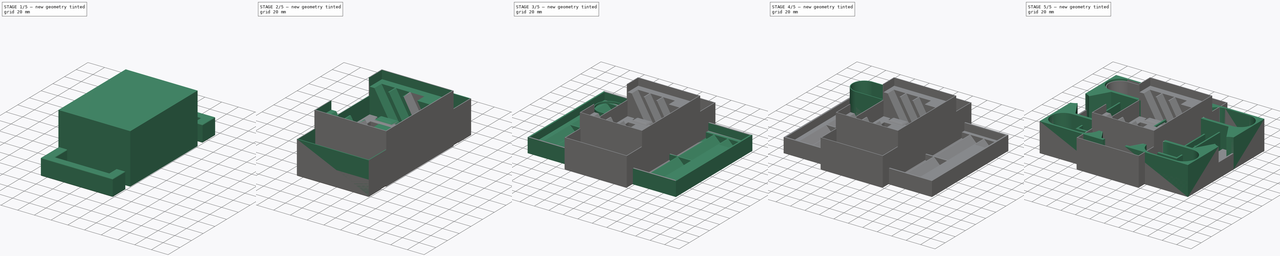
[diagram: build sequence overview — one tinted view per stage of 5, left to right]
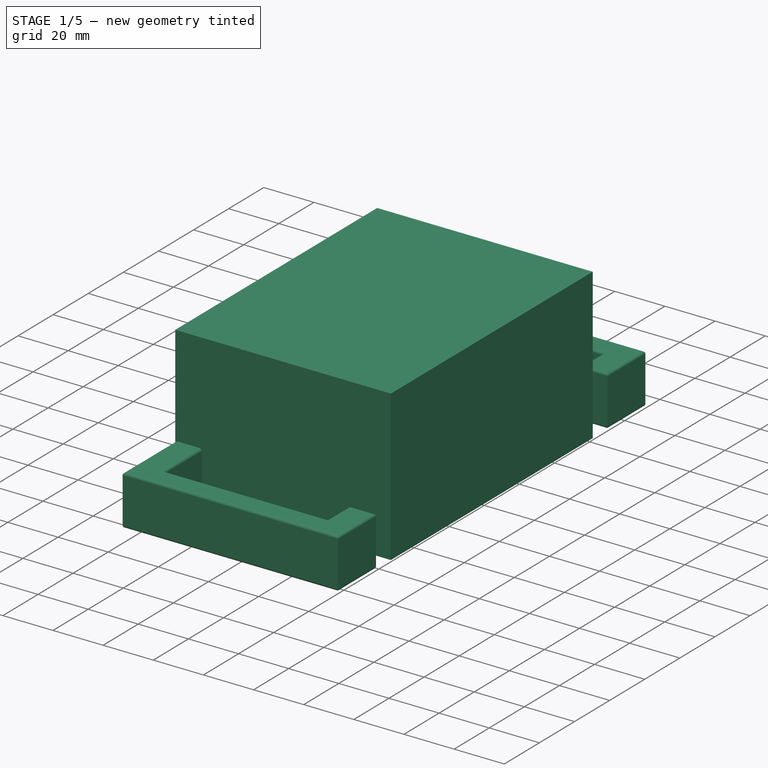
[diagram: stage 1 of 5 — iso view after this stage's code; geometry added in this stage tinted green]
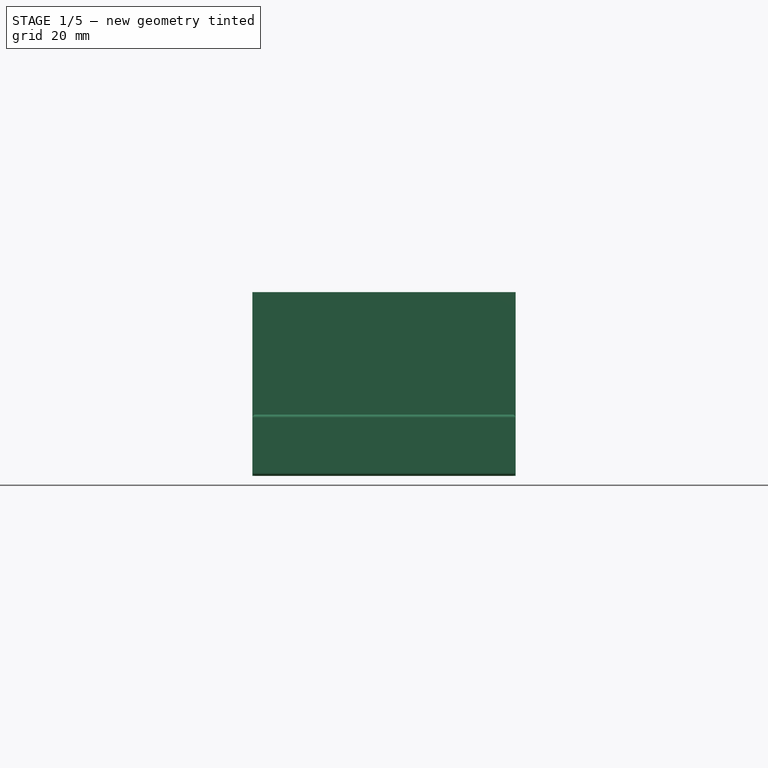
[diagram: stage 1 of 5 — front view after this stage's code; geometry added in this stage tinted green]
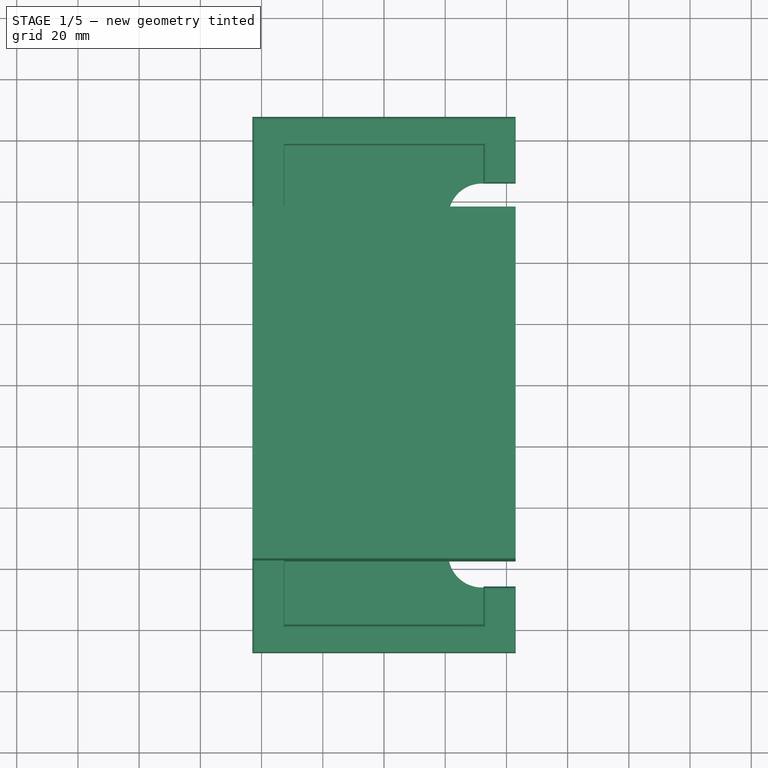
[diagram: stage 1 of 5 — top view after this stage's code; geometry added in this stage tinted green]
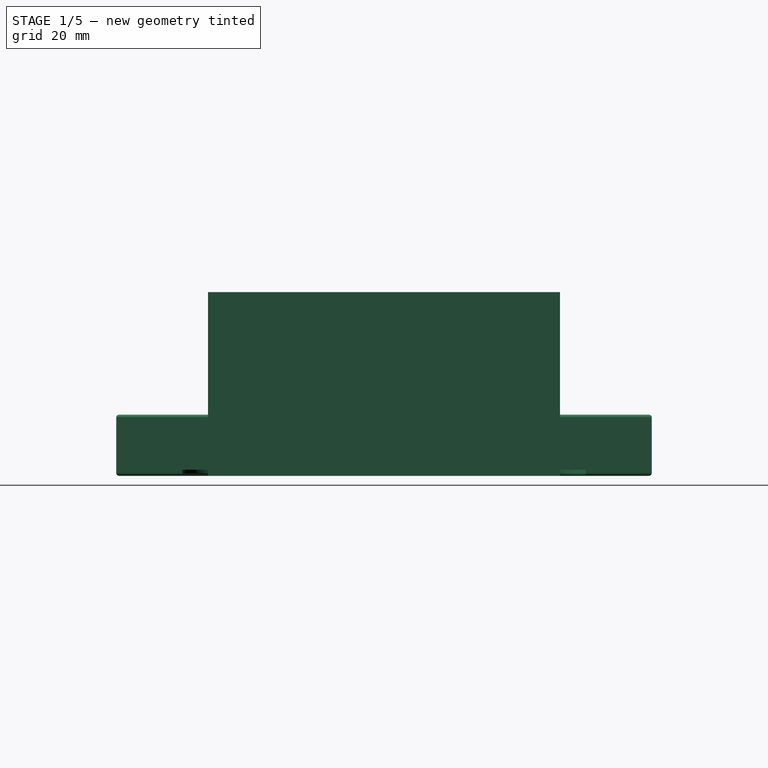
[diagram: stage 1 of 5 — right view after this stage's code; geometry added in this stage tinted green]
FCSTD DOCUMENT  (FreeCAD 0.20R29177 (Git))
Label: DiceThemePark
License: All rights reserved
LicenseURL: http://en.wikipedia.org/wiki/All_rights_reserved
objects: Sketcher::SketchObject×25, PartDesign::Pocket×13, PartDesign::Plane×12, PartDesign::Fillet×12, PartDesign::Pad×11, PartDesign::Body×9, PartDesign::LinearPattern×8, PartDesign::Thickness×3, PartDesign::MultiTransform×2
note: 134 computed .brp shape members not serialized (recipe doc carries the construction recipe); baked Part::Feature solids carry a one-line shape summary decoded from their .brp

FEATURE [PartDesign::Body] Body006  label="MonorailTray"
  Group = -> [Sketch015,Pad007,DatumPlane008,Sketch016,Pocket007,DatumPlane009,Sketch017,Pad008,MultiTransform001,LinearPattern003,Fillet008,LinearPattern004,Fillet009]
  Origin = -> Origin006
  Placement = pos=(-51,-51,0) rot=(0,0,1;0rad)
  Tip = -> Fillet009
FEATURE [Sketcher::SketchObject] Sketch018
  FullyConstrained = true
  MapMode = 5
  Support = -> [XY_Plane007]
  sketch-geometry (4):
    g0: LineSegment StartX=-43 StartY=57.5 StartZ=0 EndX=43 EndY=57.5 EndZ=0
    g1: LineSegment StartX=43 StartY=57.5 StartZ=0 EndX=43 EndY=-57.5 EndZ=0
    g2: LineSegment StartX=43 StartY=-57.5 StartZ=0 EndX=-43 EndY=-57.5 EndZ=0
    g3: LineSegment StartX=-43 StartY=-57.5 StartZ=0 EndX=-43 EndY=57.5 EndZ=0
  constraints (10):
    c: Coincident(g0,g1)
    c: Coincident(g1,g2)
    c: Coincident(g2,g3)
    c: Coincident(g3,g0)
    c: Horizontal(g2)
    c: Vertical(g1)
    c: DistanceY(g3,g3) = 115
    c: DistanceX(g0,g0) = 86
    c: Symmetric(g0,g0,g-2)
    c: Symmetric(g0,g2,g-1)
FEATURE [PartDesign::Pad] Pad009
  Direction = (0,0,1)
  Length = 60
  Length2 = 10
  Profile = -> Sketch018
  ReferenceAxis = -> Sketch018 [N_Axis]
  Type = 0
FEATURE [PartDesign::Plane] DatumPlane010
  Length = 103.1
  MapMode = 5
  Placement = pos=(0,-57.5,0) rot=(1,0,0;1.5708rad)
  ResizeMode = 0
  Support = -> [Pad009]
  Width = 102.1
FEATURE [Sketcher::SketchObject] Sketch019
  AttachmentOffset = pos=(34,3,-15) rot=(0,0,1;0rad)
  FullyConstrained = true
  MapMode = 5
  Placement = pos=(34,-42.5,3) rot=(1,0,0;1.5708rad)
  Support = -> [DatumPlane010]
  sketch-geometry (4):
    g0: LineSegment StartX=-40.0829 StartY=55.4256 StartZ=0 EndX=-23.9171 EndY=55.4256 EndZ=0
    g1: LineSegment StartX=-23.9171 StartY=55.4256 StartZ=0 EndX=8.0829 EndY=0 EndZ=0
    g2: LineSegment StartX=8.0829 StartY=0 StartZ=0 EndX=-8.0829 EndY=0 EndZ=0
    g3: LineSegment StartX=-8.0829 StartY=0 StartZ=0 EndX=-40.0829 EndY=55.4256 EndZ=0
  constraints (11):
    c: Coincident(g0,g1)
    c: Coincident(g1,g2)
    c: Coincident(g2,g3)
    c: Coincident(g3,g0)
    c: Horizontal(g0)
    c: Symmetric(g2,g1,g-2)
    c: PointOnObject(g2,g-1)
    c: Angle(g1,g2) = 1.0472
    c: Distance(g0,g3) = 14
    c: Distance(g3) = 64
    c: Equal(g3,g1)
FEATURE [PartDesign::Pocket] Pocket008
  BaseFeature = -> Pad009
  Direction = (0,1,-2e-16)
  Length = 90
  Length2 = 5
  Profile = -> Sketch019
  ReferenceAxis = -> Sketch019 [N_Axis]
  Type = 0
FEATURE [PartDesign::Body] Body007  label="BigCardTray"
  Group = -> [Sketch018,Pad009,DatumPlane010,Sketch019,Pocket008,LinearPattern005,DatumPlane011,Sketch020,Pocket009,Sketch021,Pocket010]
  Origin = -> Origin007
  Placement = pos=(-53,111,0) rot=(0,0,1;0rad)
  Tip = -> Pocket010
FEATURE [Sketcher::SketchObject] Sketch022
  FullyConstrained = true
  MapMode = 5
  Support = -> [XY_Plane008]
  sketch-geometry (4):
    g0: LineSegment StartX=-43 StartY=87.5 StartZ=0 EndX=43 EndY=87.5 EndZ=0
    g1: LineSegment StartX=43 StartY=87.5 StartZ=0 EndX=43 EndY=-87.5 EndZ=0
    g2: LineSegment StartX=43 StartY=-87.5 StartZ=0 EndX=-43 EndY=-87.5 EndZ=0
    g3: LineSegment StartX=-43 StartY=-87.5 StartZ=0 EndX=-43 EndY=87.5 EndZ=0
  constraints (10):
    c: Coincident(g0,g1)
    c: Coincident(g1,g2)
    c: Coincident(g2,g3)
    c: Coincident(g3,g0)
    c: Horizontal(g0)
    c: Vertical(g3)
    c: DistanceX(g0,g0) = 86
    c: DistanceY(g3,g3) = 175
    c: Symmetric(g2,g1,g-2)
    c: Symmetric(g1,g0,g-1)
FEATURE [PartDesign::Pad] Pad010
  Direction = (0,0,1)
  Length = 20
  Length2 = 10
  Profile = -> Sketch022
  ReferenceAxis = -> Sketch022 [N_Axis]
  Type = 0
FEATURE [PartDesign::Plane] DatumPlane012
  Length = 110.536
  MapMode = 5
  Placement = pos=(0,0,20) rot=(0,0,1;0rad)
  ResizeMode = 0
  Support = -> [Pad010]
  Width = 199.536
FEATURE [Sketcher::SketchObject] Sketch023
  AttachmentOffset = pos=(0,55,0) rot=(0,0,1;0rad)
  FullyConstrained = true
  MapMode = 5
  Placement = pos=(0,55,20) rot=(0,0,1;0rad)
  Support = -> [DatumPlane012]
  sketch-geometry (4):
    g0: LineSegment StartX=-32.5 StartY=23.5 StartZ=0 EndX=32.5 EndY=23.5 EndZ=0
    g1: LineSegment StartX=32.5 StartY=23.5 StartZ=0 EndX=32.5 EndY=-23.5 EndZ=0
    g2: LineSegment StartX=32.5 StartY=-23.5 StartZ=0 EndX=-32.5 EndY=-23.5 EndZ=0
    g3: LineSegment StartX=-32.5 StartY=-23.5 StartZ=0 EndX=-32.5 EndY=23.5 EndZ=0
  constraints (10):
    c: Coincident(g0,g1)
    c: Coincident(g1,g2)
    c: Coincident(g2,g3)
    c: Coincident(g3,g0)
    c: Horizontal(g2)
    c: Vertical(g3)
    c: Symmetric(g0,g1,g-1)
    c: Symmetric(g0,g0,g-2)
    c: DistanceX(g0,g0) = 65
    c: DistanceY(g3,g3) = 47
FEATURE [PartDesign::Pocket] Pocket011
  BaseFeature = -> Pad010
  Direction = (0,0,-1)
  Length = 18
  Length2 = 5
  Profile = -> Sketch023
  ReferenceAxis = -> Sketch023 [N_Axis]
  Type = 0
FEATURE [PartDesign::LinearPattern] LinearPattern006
  BaseFeature = -> Pocket011
  Direction = -> Sketch023 [V_Axis]
  Length = 110
  Occurrences = 3
  Originals = -> [Pocket011]
  Reversed = true
FEATURE [Sketcher::SketchObject] Sketch024
  AttachmentOffset = pos=(0,55,0) rot=(0,0,1;0rad)
  FullyConstrained = true
  MapMode = 5
  Placement = pos=(0,55,20) rot=(0,0,1;0rad)
  Support = -> [DatumPlane012]
  sketch-geometry (4):
    g0: ArcOfCircle CenterX=32 CenterY=0 CenterZ=0 NormalX=0 NormalY=0 NormalZ=1 AngleXU=0 Radius=11 StartAngle=1.5708 EndAngle=4.71239
    g1: ArcOfCircle CenterX=45 CenterY=0 CenterZ=0 NormalX=0 NormalY=0 NormalZ=1 AngleXU=0 Radius=11 StartAngle=4.71239 EndAngle=7.85398
    g2: LineSegment StartX=32 StartY=-11 StartZ=0 EndX=45 EndY=-11 EndZ=0
    g3: LineSegment StartX=45 StartY=11 StartZ=0 EndX=32 EndY=11 EndZ=0
  constraints (10):
    c: Tangent(g0,g2) = -1.5708
    c: Tangent(g2,g1) = -1.5708
    c: Tangent(g1,g3) = -1.5708
    c: Tangent(g3,g0) = -1.5708
    c: Equal(g0,g1)
    c: PointOnObject(g0,g-1)
    c: PointOnObject(g1,g-1)
    c: DistanceY(g1,g1) = 22
    c: DistanceX(g-1,g0) = 32
    c: DistanceX(g-1,g1) = 45
FEATURE [PartDesign::Pocket] Pocket012
  BaseFeature = -> LinearPattern006
  Direction = (0,0,-1)
  Length = 5
  Length2 = 5
  Profile = -> Sketch024
  ReferenceAxis = -> Sketch024 [N_Axis]
  Type = 1
FEATURE [PartDesign::LinearPattern] LinearPattern007
  BaseFeature = -> Pocket012
  Direction = -> Sketch024 [V_Axis]
  Length = 110
  Occurrences = 3
  Originals = -> [Pocket012]
  Reversed = true
FEATURE [PartDesign::Fillet] Fillet010
  Base = -> LinearPattern007 [Face5]
  BaseFeature = -> LinearPattern007
  Radius = 1
  SupportTransform = false
  UseAllEdges = false
FEATURE [PartDesign::Fillet] Fillet011
  Base = -> Fillet010 [Face4]
  BaseFeature = -> Fillet010
  Radius = 2
  SupportTransform = false
  UseAllEdges = false
FEATURE [PartDesign::Body] Body008  label="GoalCardTray"
  Group = -> [Sketch022,Pad010,DatumPlane012,Sketch023,Pocket011,LinearPattern006,Sketch024,Pocket012,LinearPattern007,Fillet010,Fillet011]
  Origin = -> Origin008
  Placement = pos=(-50,-53,71) rot=(0,0,1;0rad)
  Tip = -> Fillet011
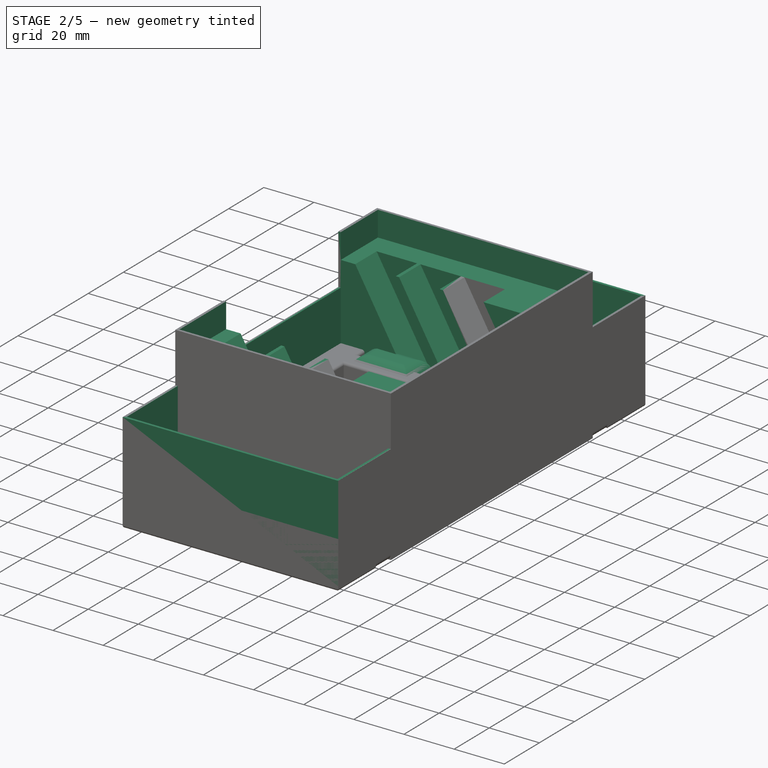
[diagram: stage 2 of 5 — iso view after this stage's code; geometry added in this stage tinted green]
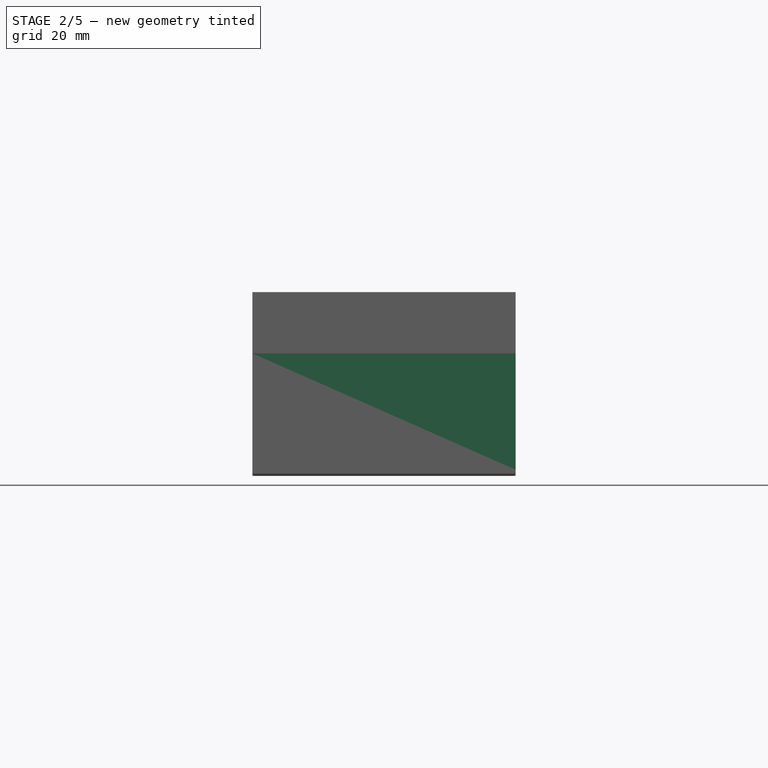
[diagram: stage 2 of 5 — front view after this stage's code; geometry added in this stage tinted green]
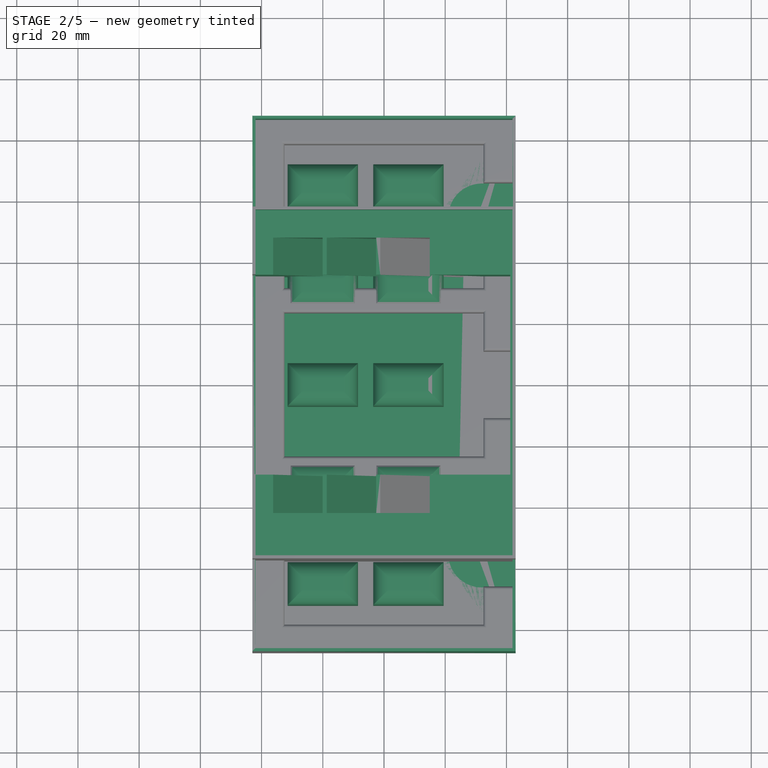
[diagram: stage 2 of 5 — top view after this stage's code; geometry added in this stage tinted green]
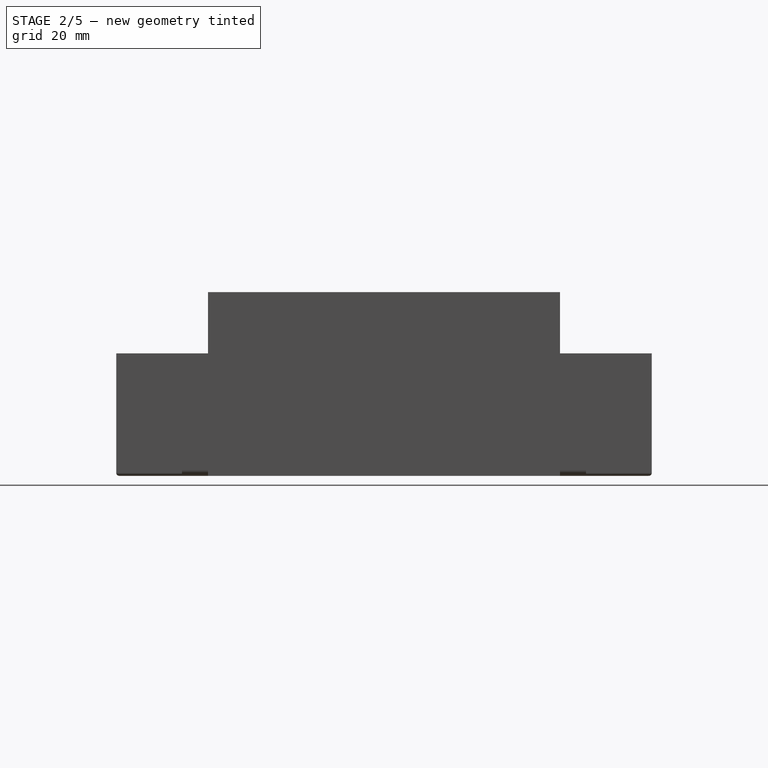
[diagram: stage 2 of 5 — right view after this stage's code; geometry added in this stage tinted green]
FEATURE [PartDesign::Body] Body005  label="DiceTray"
  Group = -> [Sketch010,Pad005,DatumPlane005,Sketch011,Sketch012,Pocket005,DatumPlane006,Sketch013,Pocket006,MultiTransform,LinearPattern,LinearPattern001,LinearPattern002,DatumPlane007,Sketch014,Pad006]
  Origin = -> Origin005
  Placement = pos=(100,-60,111) rot=(0,0,1;0rad)
  Tip = -> Pad006
FEATURE [Sketcher::SketchObject] Sketch015
  FullyConstrained = true
  MapMode = 5
  Support = -> [XY_Plane006]
  sketch-geometry (4):
    g0: LineSegment StartX=-43 StartY=87.5 StartZ=0 EndX=43 EndY=87.5 EndZ=0
    g1: LineSegment StartX=43 StartY=87.5 StartZ=0 EndX=43 EndY=-87.5 EndZ=0
    g2: LineSegment StartX=43 StartY=-87.5 StartZ=0 EndX=-43 EndY=-87.5 EndZ=0
    g3: LineSegment StartX=-43 StartY=-87.5 StartZ=0 EndX=-43 EndY=87.5 EndZ=0
  constraints (10):
    c: Coincident(g0,g1)
    c: Coincident(g1,g2)
    c: Coincident(g2,g3)
    c: Coincident(g3,g0)
    c: Horizontal(g2)
    c: Vertical(g1)
    c: DistanceY(g3,g3) = 175
    c: DistanceX(g0,g0) = 86
    c: Symmetric(g0,g0,g-2)
    c: Symmetric(g0,g2,g-1)
FEATURE [PartDesign::Pad] Pad007
  Direction = (0,0,1)
  Length = 40
  Length2 = 10
  Profile = -> Sketch015
  ReferenceAxis = -> Sketch015 [N_Axis]
  Type = 0
FEATURE [PartDesign::Plane] DatumPlane008
  Length = 60
  MapMode = 5
  Placement = pos=(0,0,40) rot=(0,0,1;0rad)
  ResizeMode = 0
  Support = -> [Pad007]
  Width = 60
FEATURE [Sketcher::SketchObject] Sketch016
  FullyConstrained = true
  MapMode = 5
  Placement = pos=(0,0,40) rot=(0,0,1;0rad)
  Support = -> [DatumPlane008]
  sketch-geometry (4):
    g0: LineSegment StartX=-42 StartY=86.5 StartZ=0 EndX=42 EndY=86.5 EndZ=0
    g1: LineSegment StartX=42 StartY=86.5 StartZ=0 EndX=42 EndY=-86.5 EndZ=0
    g2: LineSegment StartX=42 StartY=-86.5 StartZ=0 EndX=-42 EndY=-86.5 EndZ=0
    g3: LineSegment StartX=-42 StartY=-86.5 StartZ=0 EndX=-42 EndY=86.5 EndZ=0
  constraints (10):
    c: Coincident(g0,g1)
    c: Coincident(g1,g2)
    c: Coincident(g2,g3)
    c: Coincident(g3,g0)
    c: Horizontal(g2)
    c: Vertical(g1)
    c: DistanceY(g3,g3) = 173
    c: Symmetric(g0,g2,g-1)
    c: Symmetric(g0,g0,g-2)
    c: DistanceX(g0,g0) = 84
FEATURE [PartDesign::Pocket] Pocket007
  BaseFeature = -> Pad007
  Direction = (0,0,-1)
  Length = 38
  Length2 = 5
  Profile = -> Sketch016
  ReferenceAxis = -> Sketch016 [N_Axis]
  Type = 0
FEATURE [PartDesign::Plane] DatumPlane009
  Length = 60
  MapMode = 5
  Placement = pos=(0,0,2) rot=(0,0,1;0rad)
  ResizeMode = 0
  Support = -> [Pocket007]
  Width = 60
FEATURE [Sketcher::SketchObject] Sketch017
  AttachmentOffset = pos=(-20,65,0) rot=(0,0,1;0rad)
  FullyConstrained = true
  MapMode = 5
  Placement = pos=(-20,65,2) rot=(0,0,1;0rad)
  Support = -> [DatumPlane009]
  sketch-geometry (4):
    g0: LineSegment StartX=-11.5 StartY=7 StartZ=0 EndX=11.5 EndY=7 EndZ=0
    g1: LineSegment StartX=11.5 StartY=7 StartZ=0 EndX=11.5 EndY=-7 EndZ=0
    g2: LineSegment StartX=11.5 StartY=-7 StartZ=0 EndX=-11.5 EndY=-7 EndZ=0
    g3: LineSegment StartX=-11.5 StartY=-7 StartZ=0 EndX=-11.5 EndY=7 EndZ=0
  constraints (10):
    c: Coincident(g0,g1)
    c: Coincident(g1,g2)
    c: Coincident(g2,g3)
    c: Coincident(g3,g0)
    c: Horizontal(g2)
    c: Vertical(g1)
    c: DistanceY(g3,g3) = 14
    c: Symmetric(g0,g2,g-1)
    c: Symmetric(g0,g0,g-2)
    c: DistanceX(g0,g0) = 23
FEATURE [PartDesign::Pad] Pad008
  BaseFeature = -> Pocket007
  Direction = (0,0,1)
  Length = 20
  Length2 = 10
  Profile = -> Sketch017
  ReferenceAxis = -> Sketch017 [N_Axis]
  Type = 0
FEATURE [PartDesign::LinearPattern] LinearPattern003
  Direction = -> Sketch017 [V_Axis]
  Length = 130
  Occurrences = 5
  Reversed = true
FEATURE [PartDesign::LinearPattern] LinearPattern004
  Direction = -> Sketch017 [H_Axis]
  Length = 28
  Occurrences = 2
FEATURE [PartDesign::MultiTransform] MultiTransform001
  BaseFeature = -> Pad008
  Originals = -> [Pad008]
  Transformations = -> [LinearPattern003,LinearPattern004]
FEATURE [PartDesign::Fillet] Fillet008
  Base = -> MultiTransform001 [Face53,Face52,Face54,Face55,Face56,Face59,Face60,Face58,Face61,Face57]
  BaseFeature = -> MultiTransform001
  Radius = 5
  SupportTransform = false
  UseAllEdges = false
FEATURE [PartDesign::Fillet] Fillet009
  Base = -> Fillet008 [Face101]
  BaseFeature = -> Fillet008
  Radius = 2
  SupportTransform = false
  UseAllEdges = false
FEATURE [PartDesign::LinearPattern] LinearPattern005
  BaseFeature = -> Pocket008
  Direction = -> Sketch019 [H_Axis]
  Length = 35
  Occurrences = 3
  Originals = -> [Pocket008]
  Reversed = true
FEATURE [PartDesign::Plane] DatumPlane011
  Length = 105.89
  MapMode = 5
  Placement = pos=(0,0,60) rot=(0,0,1;0rad)
  ResizeMode = 0
  Support = -> [LinearPattern005]
  Width = 134.89
FEATURE [Sketcher::SketchObject] Sketch020
  FullyConstrained = true
  MapMode = 5
  Placement = pos=(0,0,60) rot=(0,0,1;0rad)
  Support = -> [DatumPlane011]
  sketch-geometry (4):
    g0: LineSegment StartX=-42 StartY=56.5 StartZ=0 EndX=42 EndY=56.5 EndZ=0
    g1: LineSegment StartX=42 StartY=56.5 StartZ=0 EndX=42 EndY=-56.5 EndZ=0
    g2: LineSegment StartX=42 StartY=-56.5 StartZ=0 EndX=-42 EndY=-56.5 EndZ=0
    g3: LineSegment StartX=-42 StartY=-56.5 StartZ=0 EndX=-42 EndY=56.5 EndZ=0
  constraints (10):
    c: Coincident(g0,g1)
    c: Coincident(g1,g2)
    c: Coincident(g2,g3)
    c: Coincident(g3,g0)
    c: Horizontal(g2)
    c: Vertical(g1)
    c: DistanceX(g0,g0) = 84
    c: DistanceY(g3,g3) = 113
    c: Symmetric(g0,g0,g-2)
    c: Symmetric(g0,g2,g-1)
FEATURE [PartDesign::Pocket] Pocket009
  BaseFeature = -> LinearPattern005
  Direction = (0,0,-1)
  Length = 10
  Length2 = 5
  Profile = -> Sketch020
  ReferenceAxis = -> Sketch020 [N_Axis]
  Type = 0
FEATURE [Sketcher::SketchObject] Sketch021
  FullyConstrained = false
  MapMode = 5
  Placement = pos=(0,0,60) rot=(0,0,1;0rad)
  Support = -> [DatumPlane011]
  sketch-geometry (4):
    g0: LineSegment StartX=-43.1163 StartY=35.3417 StartZ=0 EndX=41.2386 EndY=35.3417 EndZ=0
    g1: LineSegment StartX=41.2386 StartY=35.3417 StartZ=0 EndX=41.2386 EndY=-29.9715 EndZ=0
    g2: LineSegment StartX=41.2386 StartY=-29.9715 StartZ=0 EndX=-43.1163 EndY=-29.9715 EndZ=0
    g3: LineSegment StartX=-43.1163 StartY=-29.9715 StartZ=0 EndX=-43.1163 EndY=35.3417 EndZ=0
  constraints (8):
    c: Coincident(g0,g1)
    c: Coincident(g1,g2)
    c: Coincident(g2,g3)
    c: Coincident(g3,g0)
    c: Horizontal(g0)
    c: Horizontal(g2)
    c: Vertical(g1)
    c: Vertical(g3)
FEATURE [PartDesign::Pocket] Pocket010
  BaseFeature = -> Pocket009
  Direction = (0,0,-1)
  Length = 57
  Length2 = 5
  Profile = -> Sketch021
  ReferenceAxis = -> Sketch021 [N_Axis]
  Type = 0
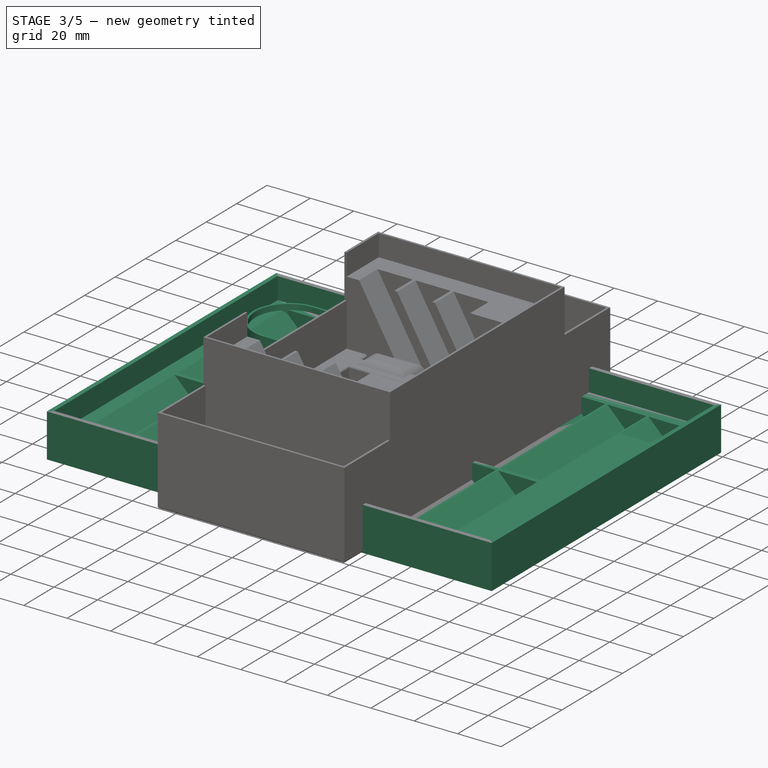
[diagram: stage 3 of 5 — iso view after this stage's code; geometry added in this stage tinted green]
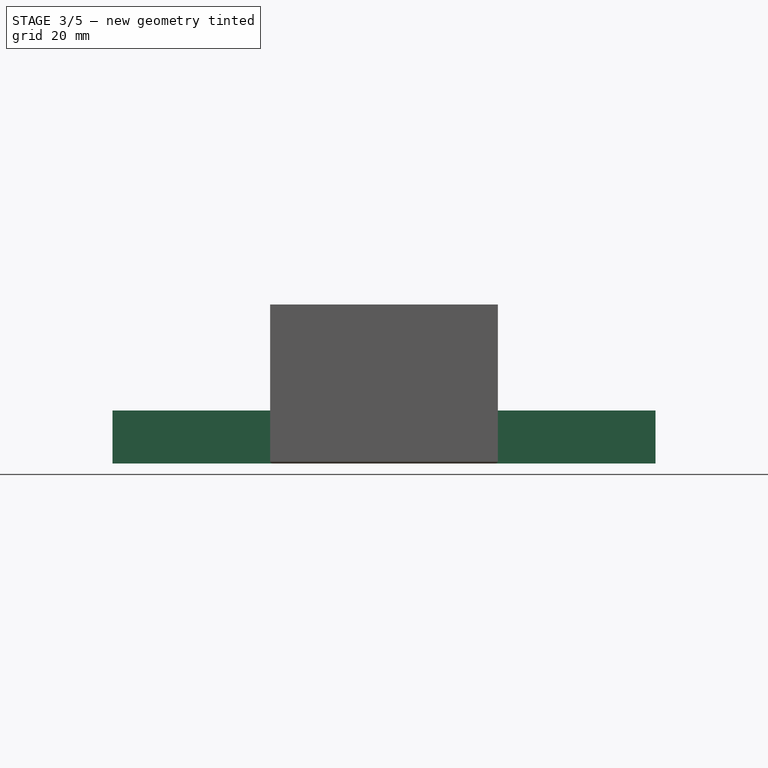
[diagram: stage 3 of 5 — front view after this stage's code; geometry added in this stage tinted green]
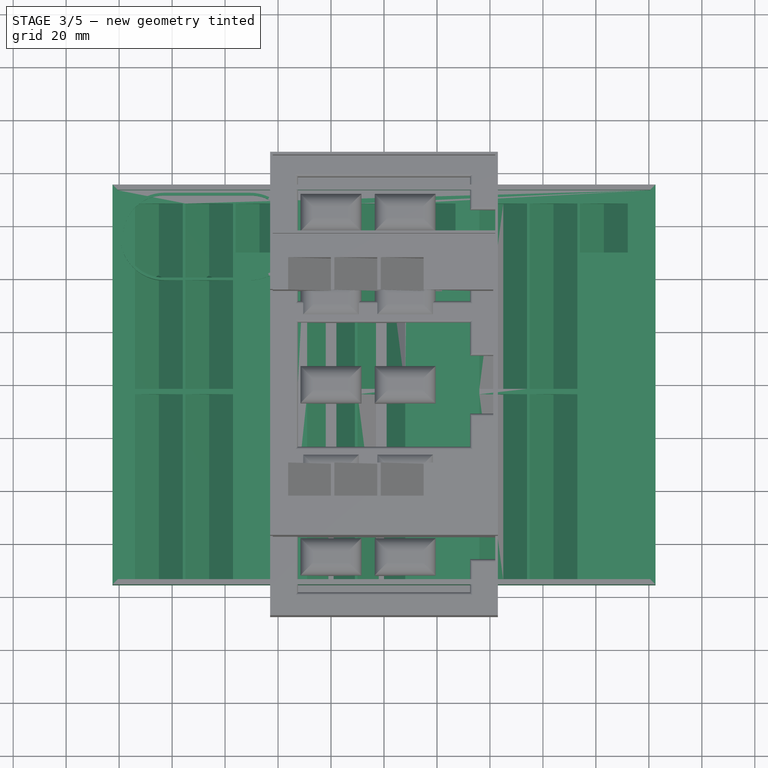
[diagram: stage 3 of 5 — top view after this stage's code; geometry added in this stage tinted green]
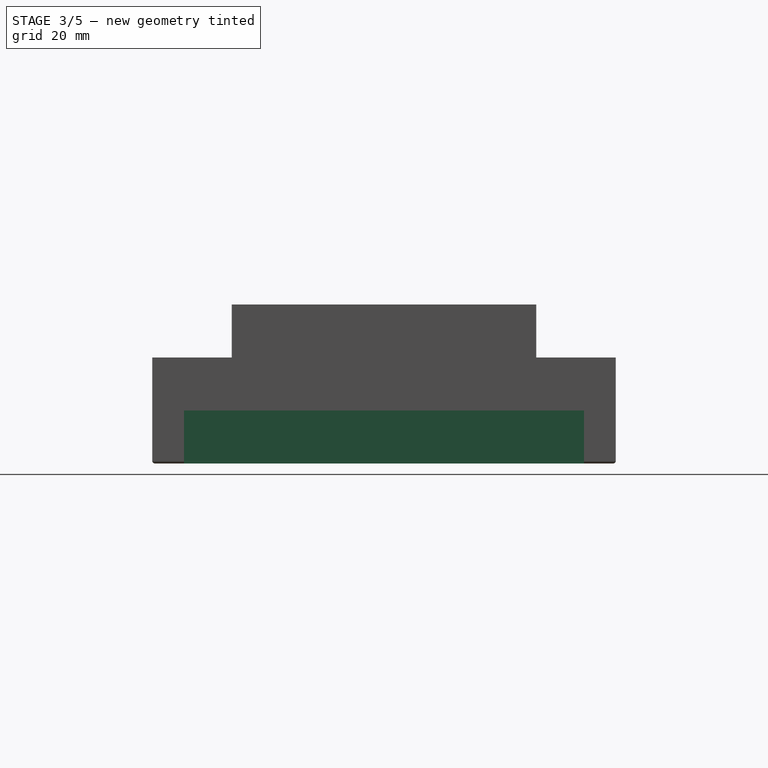
[diagram: stage 3 of 5 — right view after this stage's code; geometry added in this stage tinted green]
FEATURE [PartDesign::Body] Body003  label="ItemTub-Half"
  Group = -> [Sketch008,Pad003,Thickness001,Fillet004,Fillet005]
  Origin = -> Origin003
  Placement = pos=(233,-61,49) rot=(0,0,1;0rad)
  Tip = -> Fillet005
FEATURE [Sketcher::SketchObject] Sketch009
  FullyConstrained = true
  MapMode = 5
  Support = -> [XY_Plane004]
  sketch-geometry (4):
    g0: ArcOfCircle CenterX=-83 CenterY=56 CenterZ=0 NormalX=0 NormalY=0 NormalZ=1 AngleXU=0 Radius=16.5 StartAngle=1.5708 EndAngle=4.71239
    g1: ArcOfCircle CenterX=-50.5 CenterY=56 CenterZ=0 NormalX=0 NormalY=0 NormalZ=1 AngleXU=0 Radius=16.5 StartAngle=4.71239 EndAngle=7.85398
    g2: LineSegment StartX=-83 StartY=39.5 StartZ=0 EndX=-50.5 EndY=39.5 EndZ=0
    g3: LineSegment StartX=-50.5 StartY=72.5 StartZ=0 EndX=-83 EndY=72.5 EndZ=0
  constraints (10):
    c: Tangent(g0,g2) = -1.5708
    c: Tangent(g2,g1) = -1.5708
    c: Tangent(g1,g3) = -1.5708
    c: Tangent(g3,g0) = -1.5708
    c: Equal(g0,g1)
    c: Horizontal(g0,g1)
    c: DistanceX(g0,g-1) = 83
    c: DistanceX(g1,g-1) = 50.5
    c: DistanceY(g-1,g0) = 56
    c: DistanceY(g1,g1) = 33
FEATURE [PartDesign::Pad] Pad004
  Direction = (0,0,1)
  Length = 12.5
  Length2 = 10
  Profile = -> Sketch009
  ReferenceAxis = -> Sketch009 [N_Axis]
  Type = 0
FEATURE [PartDesign::Thickness] Thickness002
  Base = -> Pad004 [Face6]
  BaseFeature = -> Pad004
  Intersection = false
  Join = 0
  Mode = 0
  Reversed = true
  SupportTransform = false
  Value = 1
FEATURE [PartDesign::Fillet] Fillet006
  Base = -> Thickness002 [Face11]
  BaseFeature = -> Thickness002
  Radius = 2
  SupportTransform = false
  UseAllEdges = false
FEATURE [PartDesign::Body] Body004  label="ItemTub-Third"
  Group = -> [Sketch009,Pad004,Thickness002,Fillet006,Fillet007]
  Origin = -> Origin004
  Placement = pos=(101,-59,52) rot=(0,0,1;0rad)
  Tip = -> Fillet007
FEATURE [Sketcher::SketchObject] Sketch010
  FullyConstrained = true
  MapMode = 5
  Support = -> [XY_Plane005]
  sketch-geometry (4):
    g0: LineSegment StartX=-102.5 StartY=-75.5 StartZ=0 EndX=102.5 EndY=-75.5 EndZ=0
    g1: LineSegment StartX=102.5 StartY=-75.5 StartZ=0 EndX=102.5 EndY=75.5 EndZ=0
    g2: LineSegment StartX=102.5 StartY=75.5 StartZ=0 EndX=-102.5 EndY=75.5 EndZ=0
    g3: LineSegment StartX=-102.5 StartY=75.5 StartZ=0 EndX=-102.5 EndY=-75.5 EndZ=0
  constraints (10):
    c: Coincident(g0,g1)
    c: Coincident(g1,g2)
    c: Coincident(g2,g3)
    c: Coincident(g3,g0)
    c: Horizontal(g0)
    c: Vertical(g1)
    c: DistanceX(g2,g2) = 205
    c: DistanceY(g3,g3) = 151
    c: Symmetric(g2,g1,g-2)
    c: Symmetric(g2,g0,g-1)
FEATURE [PartDesign::Pad] Pad005
  Direction = (0,0,1)
  Length = 20
  Length2 = 10
  Profile = -> Sketch010
  ReferenceAxis = -> Sketch010 [N_Axis]
  Type = 0
FEATURE [PartDesign::Plane] DatumPlane005
  Length = 240.188
  MapMode = 5
  Placement = pos=(0,0,20) rot=(0,0,1;0rad)
  ResizeMode = 0
  Support = -> [Pad005]
  Width = 186.188
FEATURE [Sketcher::SketchObject] Sketch011
  FullyConstrained = true
  MapMode = 5
  Placement = pos=(0,0,20) rot=(0,0,1;0rad)
  Support = -> [DatumPlane005]
  sketch-geometry (6):
    g0: LineSegment StartX=28 StartY=28 StartZ=0 EndX=28 EndY=-42 EndZ=0
    g1: LineSegment StartX=28 StartY=-42 StartZ=0 EndX=-28 EndY=-42 EndZ=0
    g2: LineSegment StartX=-14 StartY=28 StartZ=0 EndX=-14 EndY=42 EndZ=0
    g3: LineSegment StartX=-14 StartY=42 StartZ=0 EndX=-28 EndY=42 EndZ=0
    g4: LineSegment StartX=-28 StartY=42 StartZ=0 EndX=-28 EndY=-42 EndZ=0
    g5: LineSegment StartX=-14 StartY=28 StartZ=0 EndX=28 EndY=28 EndZ=0
  constraints (16):
    c: Coincident(g0,g1)
    c: Vertical(g0)
    c: Coincident(g2,g3)
    c: Coincident(g3,g4)
    c: Horizontal(g3)
    c: Vertical(g2)
    c: Coincident(g5,g2)
    c: Coincident(g5,g0)
    c: Horizontal(g5)
    c: DistanceX(g3,g3) = 14
    c: Equal(g3,g2)
    c: DistanceY(g0,g0) = 70
    c: DistanceX(g1,g1) = 56
    c: Symmetric(g1,g0,g-2)
    c: Symmetric(g3,g1,g-1)
    c: Coincident(g1,g4)
FEATURE [Sketcher::SketchObject] Sketch012
  FullyConstrained = true
  MapMode = 5
  Placement = pos=(0,0,20) rot=(0,0,1;0rad)
  Support = -> [DatumPlane005]
  sketch-geometry (4):
    g0: LineSegment StartX=-100.5 StartY=73.5 StartZ=0 EndX=100.5 EndY=73.5 EndZ=0
    g1: LineSegment StartX=100.5 StartY=73.5 StartZ=0 EndX=100.5 EndY=-73.5 EndZ=0
    g2: LineSegment StartX=100.5 StartY=-73.5 StartZ=0 EndX=-100.5 EndY=-73.5 EndZ=0
    g3: LineSegment StartX=-100.5 StartY=-73.5 StartZ=0 EndX=-100.5 EndY=73.5 EndZ=0
  constraints (10):
    c: Coincident(g0,g1)
    c: Coincident(g1,g2)
    c: Coincident(g2,g3)
    c: Coincident(g3,g0)
    c: Horizontal(g2)
    c: Vertical(g1)
    c: DistanceY(g3,g3) = 147
    c: DistanceX(g0,g0) = 201
    c: Symmetric(g0,g2,g-1)
    c: Symmetric(g0,g0,g-2)
FEATURE [PartDesign::Pocket] Pocket005
  BaseFeature = -> Pad005
  Direction = (0,0,-1)
  Length = 10
  Length2 = 5
  Profile = -> Sketch012
  ReferenceAxis = -> Sketch012 [N_Axis]
  Type = 0
FEATURE [PartDesign::Plane] DatumPlane006
  Length = 225.248
  MapMode = 5
  Placement = pos=(0,-75.5,0) rot=(1,0,0;1.5708rad)
  ResizeMode = 0
  Support = -> [Pocket005]
  Width = 70.2485
FEATURE [Sketcher::SketchObject] Sketch013
  AttachmentOffset = pos=(-85,1,-2) rot=(0,0,1;0rad)
  FullyConstrained = true
  MapMode = 5
  Placement = pos=(-85,-73.5,1) rot=(1,0,0;1.5708rad)
  Support = -> [DatumPlane006]
  sketch-geometry (3):
    g0: LineSegment StartX=-9.89949 StartY=9.89949 StartZ=0 EndX=0 EndY=0 EndZ=0
    g1: LineSegment StartX=0 StartY=0 StartZ=0 EndX=9.89949 EndY=9.89949 EndZ=0
    g2: LineSegment StartX=-9.89949 StartY=9.89949 StartZ=0 EndX=9.89949 EndY=9.89949 EndZ=0
  constraints (7):
    c: Coincident(g1,g0)
    c: Angle(g1,g0) = 1.5708
    c: Coincident(g2,g0)
    c: Coincident(g2,g1)
    c: Distance(g0) = 14
    c: Symmetric(g0,g1,g-2)
    c: Coincident(g0,g-1)
FEATURE [PartDesign::Pocket] Pocket006
  BaseFeature = -> Pocket005
  Direction = (0,1,-2e-16)
  Length = 70
  Length2 = 5
  Profile = -> Sketch013
  ReferenceAxis = -> Sketch013 [N_Axis]
  Type = 0
FEATURE [PartDesign::LinearPattern] LinearPattern
  Direction = -> Sketch013 [H_Axis]
  Length = 38
  Occurrences = 3
FEATURE [PartDesign::LinearPattern] LinearPattern001
  Direction = -> Sketch013 [N_Axis]
  Length = 72
  Occurrences = 2
  Reversed = true
FEATURE [PartDesign::LinearPattern] LinearPattern002
  Direction = -> Sketch013 [H_Axis]
  Length = 130
  Occurrences = 3
FEATURE [PartDesign::MultiTransform] MultiTransform
  BaseFeature = -> Pocket006
  Originals = -> [Pocket006]
  Transformations = -> [LinearPattern,LinearPattern001,LinearPattern002]
FEATURE [PartDesign::Plane] DatumPlane007
  Length = 240.188
  MapMode = 5
  Placement = pos=(0,0,10) rot=(0,0,1;0rad)
  ResizeMode = 0
  Support = -> [MultiTransform]
  Width = 186.188
FEATURE [Sketcher::SketchObject] Sketch014
  FullyConstrained = false
  MapMode = 5
  Placement = pos=(0,0,10) rot=(0,0,1;0rad)
  Support = -> [DatumPlane007]
  sketch-geometry (12):
    g0: LineSegment StartX=-56.3666 StartY=50 StartZ=0 EndX=-36.3666 EndY=50 EndZ=0
    g1: LineSegment StartX=-36.3666 StartY=50 StartZ=0 EndX=-36.3666 EndY=-74 EndZ=0
    g2: LineSegment StartX=-36.3666 StartY=-74 StartZ=0 EndX=-56.3666 EndY=-74 EndZ=0
    g3: LineSegment StartX=-56.3666 StartY=-74 StartZ=0 EndX=-56.3666 EndY=50 EndZ=0
    g4: LineSegment StartX=8.60115 StartY=50 StartZ=0 EndX=28.6012 EndY=50 EndZ=0
    g5: LineSegment StartX=28.6012 StartY=50 StartZ=0 EndX=28.6012 EndY=-74 EndZ=0
    g6: LineSegment StartX=28.6012 StartY=-74 StartZ=0 EndX=8.60115 EndY=-74 EndZ=0
    g7: LineSegment StartX=8.60115 StartY=-74 StartZ=0 EndX=8.60115 EndY=50 EndZ=0
    g8: LineSegment StartX=73.6764 StartY=50 StartZ=0 EndX=93.6764 EndY=50 EndZ=0
    g9: LineSegment StartX=93.6764 StartY=50 StartZ=0 EndX=93.6764 EndY=-74 EndZ=0
    g10: LineSegment StartX=93.6764 StartY=-74 StartZ=0 EndX=73.6764 EndY=-74 EndZ=0
    g11: LineSegment StartX=73.6764 StartY=-74 StartZ=0 EndX=73.6764 EndY=50 EndZ=0
  constraints (33):
    c: Coincident(g0,g1)
    c: Coincident(g1,g2)
    c: Coincident(g2,g3)
    c: Coincident(g3,g0)
    c: Horizontal(g0)
    c: Horizontal(g2)
    c: Vertical(g1)
    c: Vertical(g3)
    c: Coincident(g4,g5)
    c: Coincident(g5,g6)
    c: Coincident(g6,g7)
    c: Coincident(g7,g4)
    c: Horizontal(g4)
    c: Horizontal(g6)
    c: Vertical(g5)
    c: Vertical(g7)
    c: Coincident(g8,g9)
    c: Coincident(g9,g10)
    c: Coincident(g10,g11)
    c: Coincident(g11,g8)
    c: Horizontal(g8)
    c: Horizontal(g10)
    c: Vertical(g9)
    c: Vertical(g11)
    c: Equal(g0,g4)
    c: Equal(g4,g8)
    c: Equal(g1,g5)
    c: Equal(g5,g9)
    c: DistanceY(g-1,g0) = 50
    c: DistanceY(g2,g-1) = 74
    c: Horizontal(g0,g4)
    c: Horizontal(g4,g8)
    c: DistanceX(g0,g0) = 20
FEATURE [PartDesign::Pad] Pad006
  BaseFeature = -> MultiTransform
  Direction = (0,0,1)
  Length = 10
  Length2 = 10
  Profile = -> Sketch014
  ReferenceAxis = -> Sketch014 [N_Axis]
  Reversed = true
  Type = 0
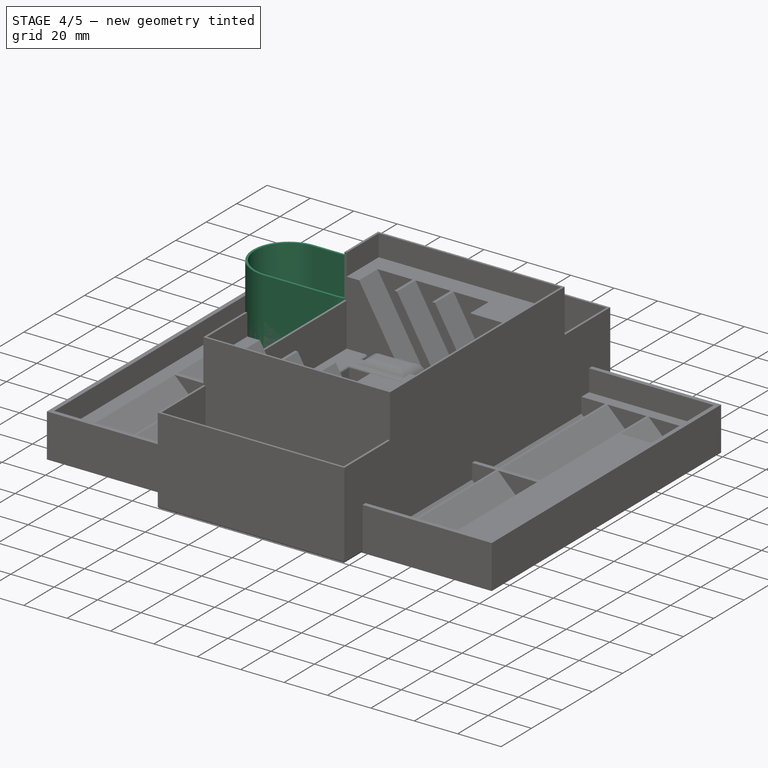
[diagram: stage 4 of 5 — iso view after this stage's code; geometry added in this stage tinted green]
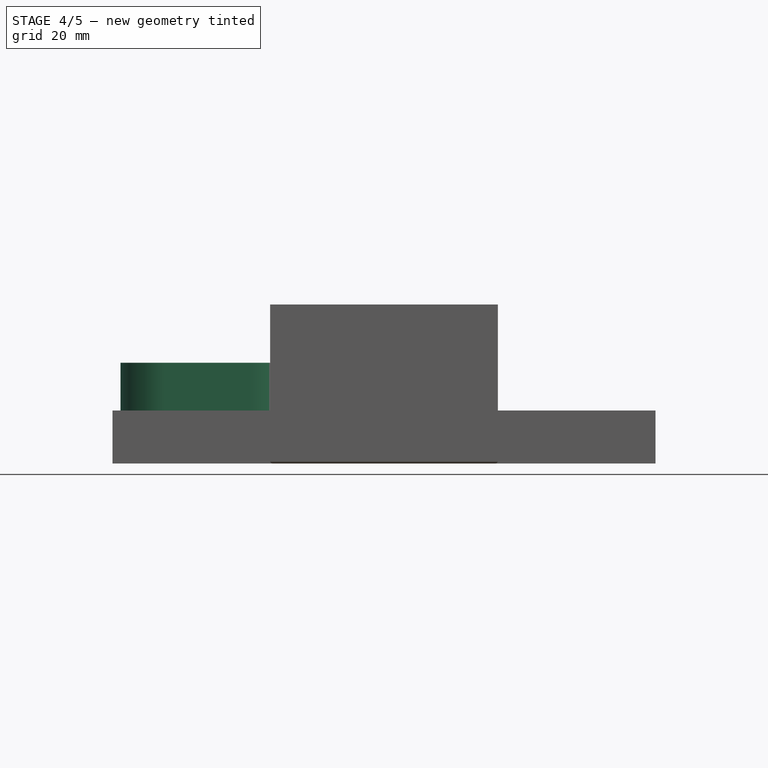
[diagram: stage 4 of 5 — front view after this stage's code; geometry added in this stage tinted green]
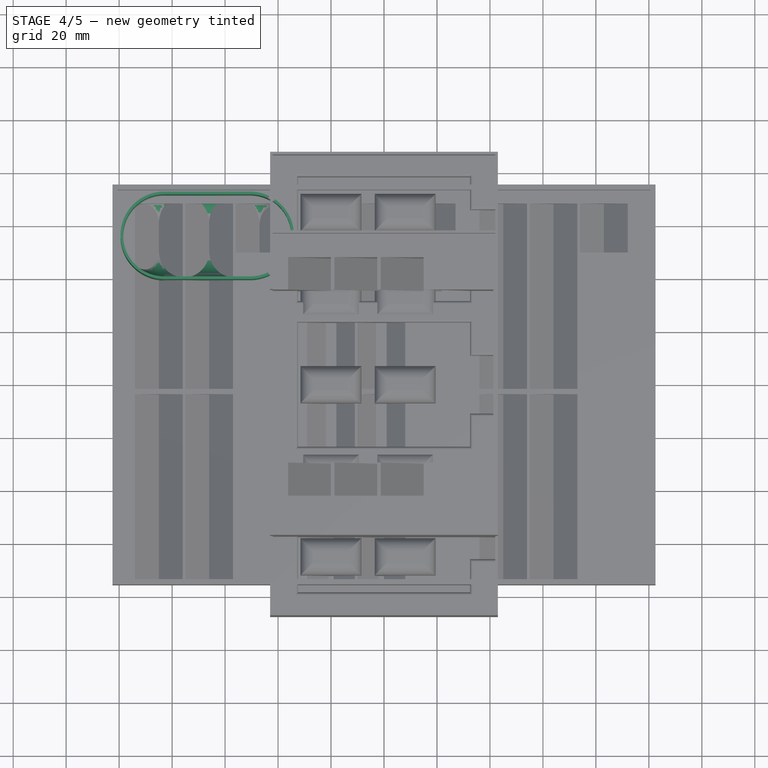
[diagram: stage 4 of 5 — top view after this stage's code; geometry added in this stage tinted green]
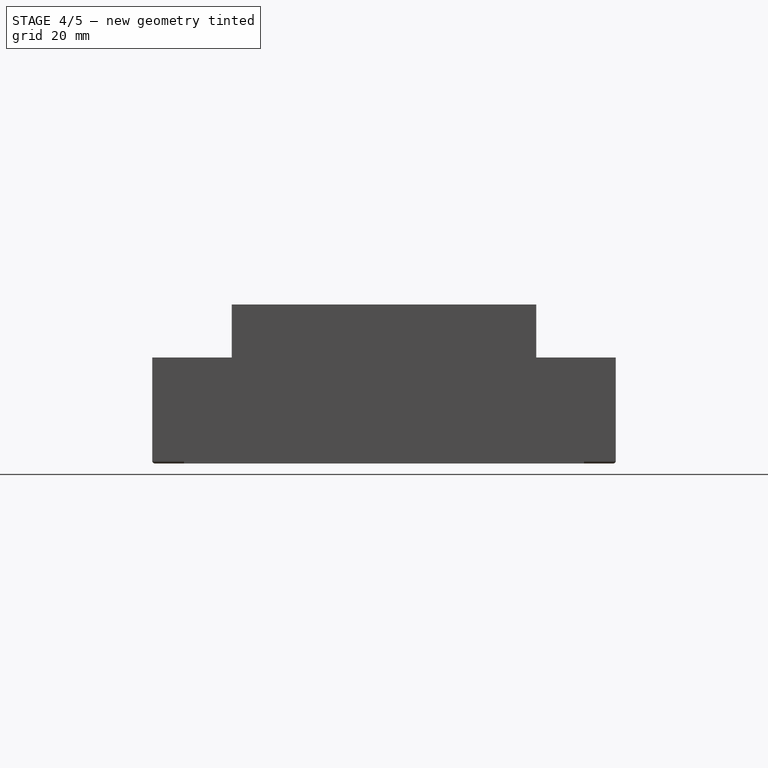
[diagram: stage 4 of 5 — right view after this stage's code; geometry added in this stage tinted green]
FEATURE [PartDesign::Body] Body001  label="TileTray"
  Group = -> [Sketch003,Pad001,DatumPlane002,Sketch004,Pocket002,DatumPlane004,Sketch005,Pocket003,Sketch006,Pocket004]
  Origin = -> Origin001
  Placement = pos=(100,-60,0) rot=(0,0,1;0rad)
  Tip = -> Pocket004
FEATURE [Sketcher::SketchObject] Sketch007
  FullyConstrained = true
  MapMode = 5
  Support = -> [XY_Plane002]
  sketch-geometry (4):
    g0: ArcOfCircle CenterX=-83 CenterY=56 CenterZ=0 NormalX=0 NormalY=0 NormalZ=1 AngleXU=0 Radius=16.5 StartAngle=1.5708 EndAngle=4.71239
    g1: ArcOfCircle CenterX=-50.5 CenterY=56 CenterZ=0 NormalX=0 NormalY=0 NormalZ=1 AngleXU=0 Radius=16.5 StartAngle=4.71239 EndAngle=7.85398
    g2: LineSegment StartX=-83 StartY=39.5 StartZ=0 EndX=-50.5 EndY=39.5 EndZ=0
    g3: LineSegment StartX=-50.5 StartY=72.5 StartZ=0 EndX=-83 EndY=72.5 EndZ=0
  constraints (10):
    c: Tangent(g0,g2) = -1.5708
    c: Tangent(g2,g1) = -1.5708
    c: Tangent(g1,g3) = -1.5708
    c: Tangent(g3,g0) = -1.5708
    c: Equal(g0,g1)
    c: Horizontal(g0,g1)
    c: DistanceX(g0,g-1) = 83
    c: DistanceX(g1,g-1) = 50.5
    c: DistanceY(g-1,g0) = 56
    c: DistanceY(g1,g1) = 33
FEATURE [PartDesign::Pad] Pad002
  Direction = (0,0,1)
  Length = 38
  Length2 = 10
  Profile = -> Sketch007
  ReferenceAxis = -> Sketch007 [N_Axis]
  Type = 0
FEATURE [PartDesign::Thickness] Thickness
  Base = -> Pad002 [Face6]
  BaseFeature = -> Pad002
  Intersection = false
  Join = 0
  Mode = 0
  Reversed = true
  SupportTransform = false
  Value = 1
FEATURE [PartDesign::Fillet] Fillet002
  Base = -> Thickness [Face11]
  BaseFeature = -> Thickness
  Radius = 10
  SupportTransform = false
  UseAllEdges = false
FEATURE [PartDesign::Fillet] Fillet003
  Base = -> Fillet002 [Face15]
  BaseFeature = -> Fillet002
  Radius = 2
  SupportTransform = false
  UseAllEdges = false
FEATURE [PartDesign::Body] Body002  label="ItemTub"
  Group = -> [Sketch007,Pad002,Thickness,Fillet002,Fillet003]
  Origin = -> Origin002
  Placement = pos=(233,-173,46) rot=(0,0,1;0rad)
  Tip = -> Fillet003
FEATURE [Sketcher::SketchObject] Sketch008
  FullyConstrained = true
  MapMode = 5
  Support = -> [XY_Plane003]
  sketch-geometry (4):
    g0: ArcOfCircle CenterX=-83 CenterY=56 CenterZ=0 NormalX=0 NormalY=0 NormalZ=1 AngleXU=0 Radius=16.5 StartAngle=1.5708 EndAngle=4.71239
    g1: ArcOfCircle CenterX=-50.5 CenterY=56 CenterZ=0 NormalX=0 NormalY=0 NormalZ=1 AngleXU=0 Radius=16.5 StartAngle=4.71239 EndAngle=7.85398
    g2: LineSegment StartX=-83 StartY=39.5 StartZ=0 EndX=-50.5 EndY=39.5 EndZ=0
    g3: LineSegment StartX=-50.5 StartY=72.5 StartZ=0 EndX=-83 EndY=72.5 EndZ=0
  constraints (10):
    c: Tangent(g0,g2) = -1.5708
    c: Tangent(g2,g1) = -1.5708
    c: Tangent(g1,g3) = -1.5708
    c: Tangent(g3,g0) = -1.5708
    c: Equal(g0,g1)
    c: Horizontal(g0,g1)
    c: DistanceX(g0,g-1) = 83
    c: DistanceX(g1,g-1) = 50.5
    c: DistanceY(g-1,g0) = 56
    c: DistanceY(g1,g1) = 33
FEATURE [PartDesign::Pad] Pad003
  Direction = (0,0,1)
  Length = 19
  Length2 = 10
  Profile = -> Sketch008
  ReferenceAxis = -> Sketch008 [N_Axis]
  Type = 0
FEATURE [PartDesign::Thickness] Thickness001
  Base = -> Pad003 [Face6]
  BaseFeature = -> Pad003
  Intersection = false
  Join = 0
  Mode = 0
  Reversed = true
  SupportTransform = false
  Value = 1
FEATURE [PartDesign::Fillet] Fillet004
  Base = -> Thickness001 [Face11]
  BaseFeature = -> Thickness001
  Radius = 2
  SupportTransform = false
  UseAllEdges = false
FEATURE [PartDesign::Fillet] Fillet005
  Base = -> Fillet004 [Face15]
  BaseFeature = -> Fillet004
  Radius = 2
  SupportTransform = false
  UseAllEdges = false
FEATURE [PartDesign::Fillet] Fillet007
  Base = -> Fillet006 [Face15]
  BaseFeature = -> Fillet006
  Radius = 2
  SupportTransform = false
  UseAllEdges = false
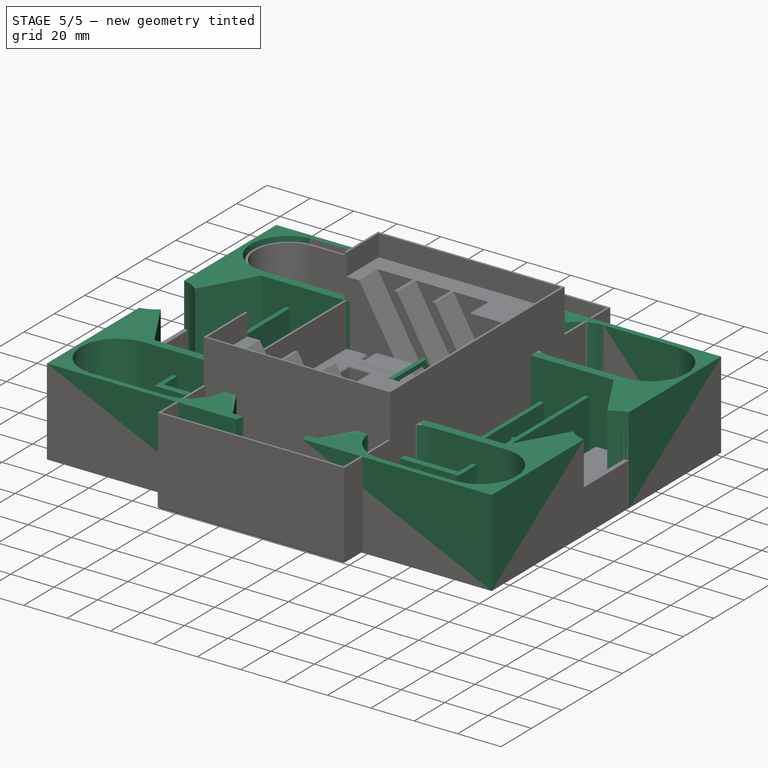
[diagram: stage 5 of 5 — iso view after this stage's code; geometry added in this stage tinted green]
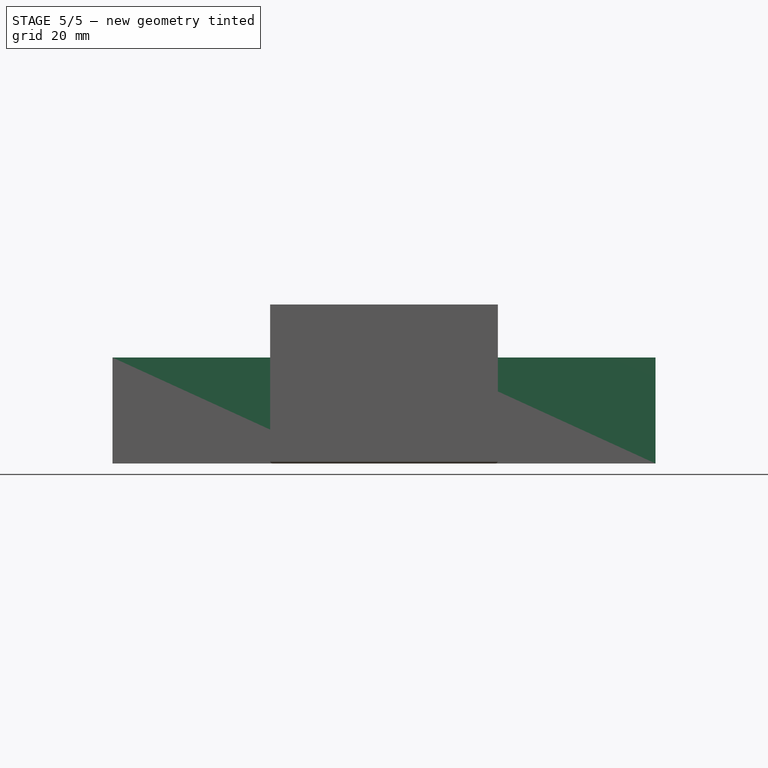
[diagram: stage 5 of 5 — front view after this stage's code; geometry added in this stage tinted green]
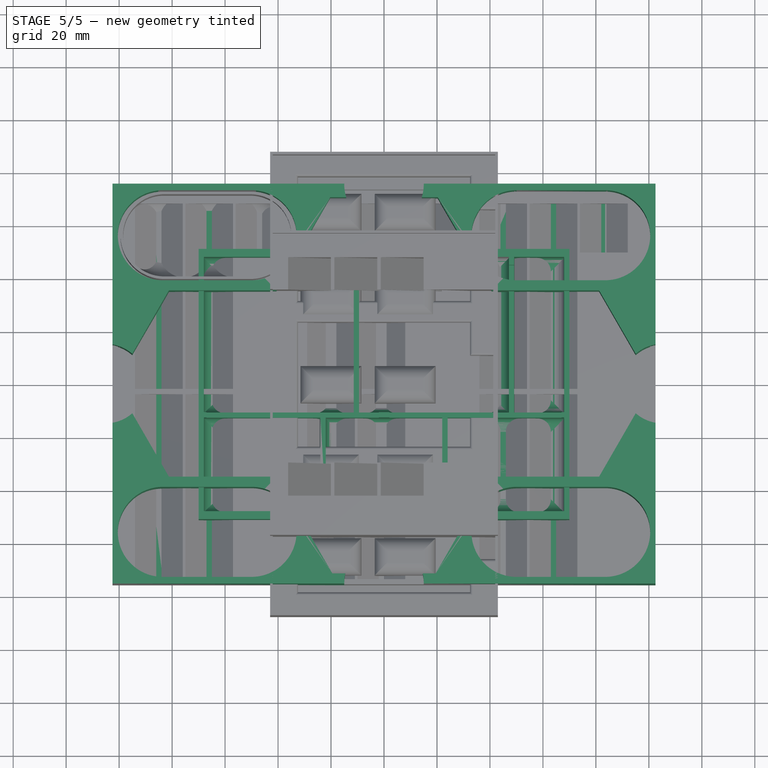
[diagram: stage 5 of 5 — top view after this stage's code; geometry added in this stage tinted green]
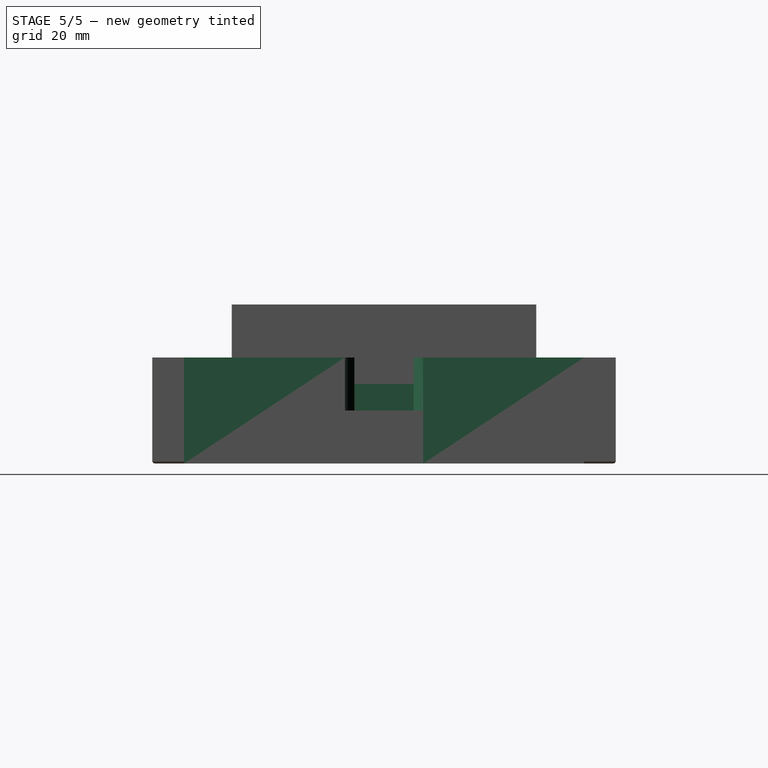
[diagram: stage 5 of 5 — right view after this stage's code; geometry added in this stage tinted green]
FEATURE [Sketcher::SketchObject] Sketch
  FullyConstrained = true
  MapMode = 5
  Support = -> [XY_Plane]
  sketch-geometry (4):
    g0: LineSegment StartX=-70 StartY=51 StartZ=0 EndX=70 EndY=51 EndZ=0
    g1: LineSegment StartX=70 StartY=51 StartZ=0 EndX=70 EndY=-51 EndZ=0
    g2: LineSegment StartX=70 StartY=-51 StartZ=0 EndX=-70 EndY=-51 EndZ=0
    g3: LineSegment StartX=-70 StartY=-51 StartZ=0 EndX=-70 EndY=51 EndZ=0
  constraints (10):
    c: Coincident(g0,g1)
    c: Coincident(g1,g2)
    c: Coincident(g2,g3)
    c: Coincident(g3,g0)
    c: Horizontal(g2)
    c: Vertical(g1)
    c: DistanceX(g0,g0) = 140
    c: DistanceY(g3,g3) = 102
    c: Symmetric(g0,g0,g-2)
    c: Symmetric(g0,g2,g-1)
FEATURE [PartDesign::Pad] Pad
  Direction = (0,0,1)
  Length = 30
  Length2 = 10
  Profile = -> Sketch
  ReferenceAxis = -> Sketch [N_Axis]
  Type = 0
FEATURE [PartDesign::Plane] DatumPlane
  Length = 163.9
  MapMode = 5
  Placement = pos=(0,0,30) rot=(0,0,1;0rad)
  ResizeMode = 0
  Support = -> [Pad]
  Width = 125.9
FEATURE [Sketcher::SketchObject] Sketch001
  FullyConstrained = false
  MapMode = 5
  Placement = pos=(0,0,30) rot=(0,0,1;0rad)
  Support = -> [DatumPlane]
  sketch-geometry (24):
    g0: LineSegment StartX=-68 StartY=48 StartZ=0 EndX=-11.4394 EndY=48 EndZ=0
    g1: LineSegment StartX=-11.4394 StartY=48 StartZ=0 EndX=-11.4394 EndY=-10.6176 EndZ=0
    g2: LineSegment StartX=-11.4394 StartY=-10.6176 StartZ=0 EndX=-68 EndY=-10.6176 EndZ=0
    g3: LineSegment StartX=-68 StartY=-10.6176 StartZ=0 EndX=-68 EndY=48 EndZ=0
    g4: LineSegment StartX=-9.43936 StartY=48 StartZ=0 EndX=47.1213 EndY=48 EndZ=0
    g5: LineSegment StartX=47.1213 StartY=48 StartZ=0 EndX=47.1213 EndY=-10.6176 EndZ=0
    g6: LineSegment StartX=47.1213 StartY=-10.6176 StartZ=0 EndX=-9.43936 EndY=-10.6176 EndZ=0
    g7: LineSegment StartX=-9.43936 StartY=-10.6176 StartZ=0 EndX=-9.43936 EndY=48 EndZ=0
    g8: LineSegment StartX=49.1213 StartY=48 StartZ=0 EndX=68 EndY=48 EndZ=0
    g9: LineSegment StartX=68 StartY=48 StartZ=0 EndX=68 EndY=-10.6176 EndZ=0
    g10: LineSegment StartX=68 StartY=-10.6176 StartZ=0 EndX=49.1213 EndY=-10.6176 EndZ=0
    g11: LineSegment StartX=49.1213 StartY=-10.6176 StartZ=0 EndX=49.1213 EndY=48 EndZ=0
    g12: LineSegment StartX=-68 StartY=-12.6176 StartZ=0 EndX=-24 EndY=-12.6176 EndZ=0
    g13: LineSegment StartX=-24 StartY=-12.6176 StartZ=0 EndX=-24 EndY=-48 EndZ=0
    g14: LineSegment StartX=-24 StartY=-48 StartZ=0 EndX=-68 EndY=-48 EndZ=0
    g15: LineSegment StartX=-68 StartY=-48 StartZ=0 EndX=-68 EndY=-12.6176 EndZ=0
    g16: LineSegment StartX=-22 StartY=-12.6176 StartZ=0 EndX=22 EndY=-12.6176 EndZ=0
    g17: LineSegment StartX=22 StartY=-12.6176 StartZ=0 EndX=22 EndY=-48 EndZ=0
    g18: LineSegment StartX=22 StartY=-48 StartZ=0 EndX=-22 EndY=-48 EndZ=0
    g19: LineSegment StartX=-22 StartY=-48 StartZ=0 EndX=-22 EndY=-12.6176 EndZ=0
    g20: LineSegment StartX=24 StartY=-12.6176 StartZ=0 EndX=68 EndY=-12.6176 EndZ=0
    g21: LineSegment StartX=68 StartY=-12.6176 StartZ=0 EndX=68 EndY=-48 EndZ=0
    g22: LineSegment StartX=68 StartY=-48 StartZ=0 EndX=24 EndY=-48 EndZ=0
    g23: LineSegment StartX=24 StartY=-48 StartZ=0 EndX=24 EndY=-12.6176 EndZ=0
  constraints (68):
    c: Coincident(g0,g1)
    c: Coincident(g1,g2)
    c: Coincident(g2,g3)
    c: Coincident(g3,g0)
    c: Horizontal(g0)
    c: Horizontal(g2)
    c: Vertical(g1)
    c: Vertical(g3)
    c: Coincident(g4,g5)
    c: Coincident(g5,g6)
    c: Coincident(g6,g7)
    c: Coincident(g7,g4)
    c: Horizontal(g4)
    c: Horizontal(g6)
    c: Vertical(g5)
    c: Vertical(g7)
    c: Coincident(g8,g9)
    c: Coincident(g9,g10)
    c: Coincident(g10,g11)
    c: Coincident(g11,g8)
    c: Horizontal(g8)
    c: Horizontal(g10)
    c: Vertical(g9)
    c: Vertical(g11)
    c: Coincident(g12,g13)
    c: Coincident(g13,g14)
    c: Coincident(g14,g15)
    c: Coincident(g15,g12)
    c: Horizontal(g12)
    c: Horizontal(g14)
    c: Vertical(g13)
    c: Vertical(g15)
    c: Coincident(g16,g17)
    c: Coincident(g17,g18)
    c: Coincident(g18,g19)
    c: Coincident(g19,g16)
    c: Horizontal(g16)
    c: Horizontal(g18)
    c: Vertical(g17)
    c: Vertical(g19)
    c: Coincident(g20,g21)
    c: Coincident(g21,g22)
    c: Coincident(g22,g23)
    c: Coincident(g23,g20)
    c: Horizontal(g20)
    c: Horizontal(g22)
    c: Vertical(g21)
    c: Vertical(g23)
    c: Symmetric(g14,g21,g-2)
    c: DistanceX(g14,g21) = 136
    c: Equal(g12,g16)
    c: Equal(g16,g20)
    c: DistanceX(g12,g16) = 2
    c: DistanceX(g16,g20) = 2
    c: Equal(g23,g19)
    c: Equal(g19,g13)
    c: Horizontal(g12,g16)
    c: Equal(g0,g4)
    c: Equal(g1,g11)
    c: Horizontal(g4,g0)
    c: Horizontal(g4,g8)
    c: Horizontal(g1,g6)
    c: DistanceX(g0,g4) = 2
    c: DistanceX(g4,g8) = 2
    c: DistanceY(g14,g0) = 96
    c: Symmetric(g0,g14,g-1)
    c: Vertical(g8,g20)
    c: DistanceY(g12,g2) = 2
FEATURE [PartDesign::Pocket] Pocket
  BaseFeature = -> Pad
  Direction = (0,0,-1)
  Length = 28
  Length2 = 5
  Profile = -> Sketch001
  ReferenceAxis = -> Sketch001 [N_Axis]
  Type = 0
FEATURE [PartDesign::Fillet] Fillet
  Base = -> Pocket [Face31,Face34,Face35,Face32,Face33,Face36]
  BaseFeature = -> Pocket
  Radius = 5
  SupportTransform = false
  UseAllEdges = false
FEATURE [PartDesign::Plane] DatumPlane001
  Length = 163.9
  MapMode = 5
  Placement = pos=(0,0,30) rot=(0,0,1;0rad)
  ResizeMode = 0
  Support = -> [Fillet]
  Width = 125.9
FEATURE [Sketcher::SketchObject] Sketch002
  FullyConstrained = true
  MapMode = 5
  Placement = pos=(0,0,30) rot=(0,0,1;0rad)
  Support = -> [DatumPlane001]
  sketch-geometry (8):
    g0: LineSegment StartX=-67 StartY=45 StartZ=0 EndX=-2 EndY=45 EndZ=0
    g1: LineSegment StartX=-2 StartY=45 StartZ=0 EndX=-2 EndY=-45 EndZ=0
    g2: LineSegment StartX=-2 StartY=-45 StartZ=0 EndX=-67 EndY=-45 EndZ=0
    g3: LineSegment StartX=-67 StartY=-45 StartZ=0 EndX=-67 EndY=45 EndZ=0
    g4: LineSegment StartX=2 StartY=45 StartZ=0 EndX=67 EndY=45 EndZ=0
    g5: LineSegment StartX=67 StartY=45 StartZ=0 EndX=67 EndY=-45 EndZ=0
    g6: LineSegment StartX=67 StartY=-45 StartZ=0 EndX=2 EndY=-45 EndZ=0
    g7: LineSegment StartX=2 StartY=-45 StartZ=0 EndX=2 EndY=45 EndZ=0
  constraints (22):
    c: Coincident(g0,g1)
    c: Coincident(g1,g2)
    c: Coincident(g2,g3)
    c: Coincident(g3,g0)
    c: Horizontal(g0)
    c: Horizontal(g2)
    c: Vertical(g1)
    c: Coincident(g4,g5)
    c: Coincident(g5,g6)
    c: Coincident(g6,g7)
    c: Coincident(g7,g4)
    c: Horizontal(g4)
    c: Horizontal(g6)
    c: Vertical(g5)
    c: Vertical(g7)
    c: Horizontal(g1,g6)
    c: DistanceX(g0,g0) = 65
    c: Equal(g4,g0)
    c: DistanceY(g3,g3) = 90
    c: Symmetric(g4,g0,g-2)
    c: Symmetric(g0,g2,g-1)
    c: DistanceX(g0,g4) = 4
FEATURE [PartDesign::Pocket] Pocket001
  BaseFeature = -> Fillet
  Direction = (0,0,-1)
  Length = 8
  Length2 = 5
  Profile = -> Sketch002
  ReferenceAxis = -> Sketch002 [N_Axis]
  Type = 0
FEATURE [PartDesign::Fillet] Fillet001
  Base = -> Pocket001 [Face40]
  BaseFeature = -> Pocket001
  Radius = 2
  SupportTransform = false
  UseAllEdges = false
FEATURE [PartDesign::Body] Body  label="PlayerTray"
  Group = -> [Sketch,Pad,DatumPlane,Sketch001,Pocket,Fillet,DatumPlane001,Sketch002,Pocket001,Fillet001]
  Origin = -> Origin
  Placement = pos=(151,90,0) rot=(0,0,1;1.5708rad)
  Tip = -> Fillet001
FEATURE [Sketcher::SketchObject] Sketch003
  FullyConstrained = true
  MapMode = 5
  Support = -> [XY_Plane001]
  sketch-geometry (4):
    g0: LineSegment StartX=-102.5 StartY=-75.5 StartZ=0 EndX=102.5 EndY=-75.5 EndZ=0
    g1: LineSegment StartX=102.5 StartY=-75.5 StartZ=0 EndX=102.5 EndY=75.5 EndZ=0
    g2: LineSegment StartX=102.5 StartY=75.5 StartZ=0 EndX=-102.5 EndY=75.5 EndZ=0
    g3: LineSegment StartX=-102.5 StartY=75.5 StartZ=0 EndX=-102.5 EndY=-75.5 EndZ=0
  constraints (10):
    c: Coincident(g0,g1)
    c: Coincident(g1,g2)
    c: Coincident(g2,g3)
    c: Coincident(g3,g0)
    c: Horizontal(g0)
    c: Vertical(g1)
    c: DistanceX(g2,g2) = 205
    c: DistanceY(g3,g3) = 151
    c: Symmetric(g2,g1,g-2)
    c: Symmetric(g2,g0,g-1)
FEATURE [PartDesign::Pad] Pad001
  Direction = (0,0,1)
  Length = 40
  Length2 = 10
  Profile = -> Sketch003
  ReferenceAxis = -> Sketch003 [N_Axis]
  Type = 0
FEATURE [PartDesign::Plane] DatumPlane002
  Length = 60
  MapMode = 5
  Placement = pos=(0,0,40) rot=(0,0,1;0rad)
  ResizeMode = 0
  Support = -> [Pad001]
  Width = 60
FEATURE [Sketcher::SketchObject] Sketch004
  FullyConstrained = true
  MapMode = 5
  Placement = pos=(0,0,40) rot=(0,0,1;0rad)
  Support = -> [Pad001]
  sketch-geometry (14):
    g0: LineSegment StartX=-101.5 StartY=0 StartZ=0 EndX=-81.2 EndY=35.1606 EndZ=0
    g1: LineSegment StartX=-81.2 StartY=35.1606 StartZ=0 EndX=-40.6 EndY=35.1606 EndZ=0
    g2: LineSegment StartX=-40.6 StartY=35.1606 StartZ=0 EndX=-20.3 EndY=70.3213 EndZ=0
    g3: LineSegment StartX=-20.3 StartY=70.3213 StartZ=0 EndX=20.3 EndY=70.3213 EndZ=0
    g4: LineSegment StartX=20.3 StartY=70.3213 StartZ=0 EndX=40.6 EndY=35.1606 EndZ=0
    g5: LineSegment StartX=40.6 StartY=35.1606 StartZ=0 EndX=81.2 EndY=35.1606 EndZ=0
    g6: LineSegment StartX=81.2 StartY=35.1606 StartZ=0 EndX=101.5 EndY=0 EndZ=0
    g7: LineSegment StartX=101.5 StartY=0 StartZ=0 EndX=81.2 EndY=-35.1606 EndZ=0
    g8: LineSegment StartX=81.2 StartY=-35.1606 StartZ=0 EndX=40.6 EndY=-35.1606 EndZ=0
    g9: LineSegment StartX=40.6 StartY=-35.1606 StartZ=0 EndX=19.5163 EndY=-71.6787 EndZ=0
    g10: LineSegment StartX=19.5163 StartY=-71.6787 StartZ=0 EndX=-19.5163 EndY=-71.6787 EndZ=0
    g11: LineSegment StartX=-19.5163 StartY=-71.6787 StartZ=0 EndX=-40.6 EndY=-35.1606 EndZ=0
    g12: LineSegment StartX=-40.6 StartY=-35.1606 StartZ=0 EndX=-81.2 EndY=-35.1606 EndZ=0
    g13: LineSegment StartX=-81.2 StartY=-35.1606 StartZ=0 EndX=-101.5 EndY=0 EndZ=0
  constraints (39):
    c: PointOnObject(g0,g-1)
    c: Coincident(g0,g1)
    c: Horizontal(g1)
    c: Coincident(g1,g2)
    c: Coincident(g2,g3)
    c: Coincident(g3,g4)
    c: Coincident(g4,g5)
    c: Horizontal(g5)
    c: Coincident(g5,g6)
    c: PointOnObject(g6,g-1)
    c: Coincident(g6,g7)
    c: Coincident(g7,g8)
    c: Horizontal(g8)
    c: Coincident(g8,g9)
    c: Coincident(g9,g10)
    c: Coincident(g10,g11)
    c: Coincident(g11,g12)
    c: Horizontal(g12)
    c: Coincident(g12,g13)
    c: Coincident(g13,g0)
    c: Horizontal(g10)
    c: Angle(g6,g7) = 2.0944
    c: Angle(g13,g0) = 2.0944
    c: Angle(g2,g3) = 2.0944
    c: Angle(g3,g4) = 2.0944
    c: Angle(g10,g11) = 2.0944
    c: Angle(g9,g10) = 2.0944
    c: DistanceY(g10,g2) = 142
    c: DistanceX(g0,g6) = 203
    c: Vertical(g5,g7)
    c: Symmetric(g3,g2,g-2)
    c: Symmetric(g0,g12,g-1)
    c: Horizontal(g4,g1)
    c: Equal(g6,g5)
    c: Equal(g5,g4)
    c: Equal(g4,g3)
    c: Equal(g2,g1)
    c: Symmetric(g8,g4,g-1)
    c: Equal(g13,g12)
FEATURE [PartDesign::Pocket] Pocket002
  BaseFeature = -> Pad001
  Direction = (0,0,-1)
  Length = 38
  Length2 = 5
  Profile = -> Sketch004
  ReferenceAxis = -> Sketch004 [N_Axis]
  Type = 0
FEATURE [Sketcher::SketchObject] Sketch005
  FullyConstrained = true
  MapMode = 5
  Placement = pos=(0,0,2) rot=(0,0,1;0rad)
  sketch-geometry (4):
    g0: Circle CenterX=105 CenterY=0 CenterZ=0 NormalX=0 NormalY=0 NormalZ=1 AngleXU=0 Radius=15
    g1: Circle CenterX=0 CenterY=75 CenterZ=0 NormalX=0 NormalY=0 NormalZ=1 AngleXU=0 Radius=15
    g2: Circle CenterX=0 CenterY=-75 CenterZ=0 NormalX=0 NormalY=0 NormalZ=1 AngleXU=0 Radius=15
    g3: Circle CenterX=-105 CenterY=0 CenterZ=0 NormalX=0 NormalY=0 NormalZ=1 AngleXU=0 Radius=15
  constraints (10):
    c: PointOnObject(g0,g-1)
    c: PointOnObject(g1,g-2)
    c: Symmetric(g0,g3,g-2)
    c: Symmetric(g1,g2,g-1)
    c: Equal(g0,g1)
    c: Equal(g1,g2)
    c: Equal(g2,g3)
    c: DistanceX(g0) = 105
    c: DistanceY(g0,g1) = 75
    c: Diameter(g1) = 30
FEATURE [Sketcher::SketchObject] Sketch006
  FullyConstrained = true
  MapMode = 5
  Placement = pos=(0,0,40) rot=(0,0,1;0rad)
  Support = -> [Pad001]
  sketch-geometry (16):
    g0: ArcOfCircle CenterX=-83.5 CenterY=-56 CenterZ=0 NormalX=0 NormalY=0 NormalZ=1 AngleXU=0 Radius=17 StartAngle=1.5708 EndAngle=4.71239
    g1: ArcOfCircle CenterX=-50 CenterY=-56 CenterZ=0 NormalX=0 NormalY=0 NormalZ=1 AngleXU=0 Radius=17 StartAngle=4.71239 EndAngle=7.85398
    g2: LineSegment StartX=-83.5 StartY=-73 StartZ=0 EndX=-50 EndY=-73 EndZ=0
    g3: LineSegment StartX=-50 StartY=-39 StartZ=0 EndX=-83.5 EndY=-39 EndZ=0
    g4: ArcOfCircle CenterX=50 CenterY=-56 CenterZ=0 NormalX=0 NormalY=0 NormalZ=1 AngleXU=0 Radius=17 StartAngle=1.5708 EndAngle=4.71239
    g5: ArcOfCircle CenterX=83.5 CenterY=-56 CenterZ=0 NormalX=0 NormalY=0 NormalZ=1 AngleXU=0 Radius=17 StartAngle=4.71239 EndAngle=7.85398
    g6: LineSegment StartX=50 StartY=-73 StartZ=0 EndX=83.5 EndY=-73 EndZ=0
    g7: LineSegment StartX=83.5 StartY=-39 StartZ=0 EndX=50 EndY=-39 EndZ=0
    g8: ArcOfCircle CenterX=50 CenterY=56 CenterZ=0 NormalX=0 NormalY=0 NormalZ=1 AngleXU=0 Radius=17 StartAngle=1.5708 EndAngle=4.71239
    g9: ArcOfCircle CenterX=83.5 CenterY=56 CenterZ=0 NormalX=0 NormalY=0 NormalZ=1 AngleXU=0 Radius=17 StartAngle=4.71239 EndAngle=7.85398
    g10: LineSegment StartX=50 StartY=39 StartZ=0 EndX=83.5 EndY=39 EndZ=0
    g11: LineSegment StartX=83.5 StartY=73 StartZ=0 EndX=50 EndY=73 EndZ=0
    g12: ArcOfCircle CenterX=-83.5 CenterY=56 CenterZ=0 NormalX=0 NormalY=0 NormalZ=1 AngleXU=0 Radius=17 StartAngle=1.5708 EndAngle=4.71239
    g13: ArcOfCircle CenterX=-50 CenterY=56 CenterZ=0 NormalX=0 NormalY=0 NormalZ=1 AngleXU=0 Radius=17 StartAngle=4.71239 EndAngle=7.85398
    g14: LineSegment StartX=-83.5 StartY=39 StartZ=0 EndX=-50 EndY=39 EndZ=0
    g15: LineSegment StartX=-50 StartY=73 StartZ=0 EndX=-83.5 EndY=73 EndZ=0
  constraints (37):
    c: Tangent(g0,g2) = -1.5708
    c: Tangent(g2,g1) = -1.5708
    c: Tangent(g1,g3) = -1.5708
    c: Tangent(g3,g0) = -1.5708
    c: Equal(g0,g1)
    c: Tangent(g4,g6) = -1.5708
    c: Tangent(g6,g5) = -1.5708
    c: Tangent(g5,g7) = -1.5708
    c: Tangent(g7,g4) = -1.5708
    c: Equal(g4,g5)
    c: Horizontal(g6)
    c: Tangent(g8,g10) = -1.5708
    c: Tangent(g10,g9) = -1.5708
    c: Tangent(g9,g11) = -1.5708
    c: Tangent(g11,g8) = -1.5708
    c: Equal(g8,g9)
    c: Horizontal(g10)
    c: Tangent(g12,g14) = -1.5708
    c: Tangent(g14,g13) = -1.5708
    c: Tangent(g13,g15) = -1.5708
    c: Tangent(g15,g12) = -1.5708
    c: Equal(g12,g13)
    c: Horizontal(g12,g13)
    c: Horizontal(g8,g12)
    c: Horizontal(g0,g4)
    c: Horizontal(g8,g12)
    c: Vertical(g13,g1)
    c: Vertical(g8,g4)
    c: Vertical(g9,g5)
    c: Symmetric(g1,g4,g-2)
    c: DistanceX(g12,g-1) = 83.5
    c: DistanceX(g13,g-1) = 50
    c: DistanceY(g9,g9) = 34
    c: DistanceY(g-1,g12) = 56
    c: Symmetric(g0,g5,g-2)
    c: Symmetric(g0,g12,g-1)
    c: Equal(g12,g0)
FEATURE [PartDesign::Plane] DatumPlane004
  Length = 60
  MapMode = 5
  Placement = pos=(0,0,35) rot=(0,0,1;0rad)
  ResizeMode = 0
  Width = 60
FEATURE [PartDesign::Pocket] Pocket003
  BaseFeature = -> Pocket002
  Direction = (0,0,-1)
  Length = 5
  Length2 = 5
  Midplane = true
  Profile = -> Sketch005
  ReferenceAxis = -> Sketch005 [N_Axis]
  Type = 1
FEATURE [PartDesign::Pocket] Pocket004
  BaseFeature = -> Pocket003
  Direction = (0,0,-1)
  Length = 38
  Length2 = 5
  Profile = -> Sketch006
  ReferenceAxis = -> Sketch006 [N_Axis]
  Type = 0
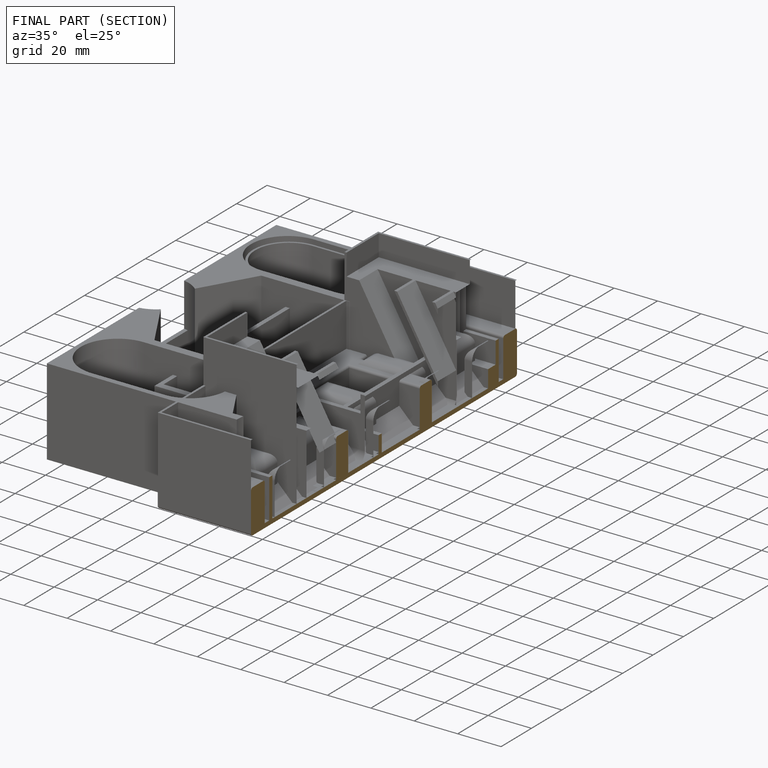
[diagram: finished part — half-section view (interior)]
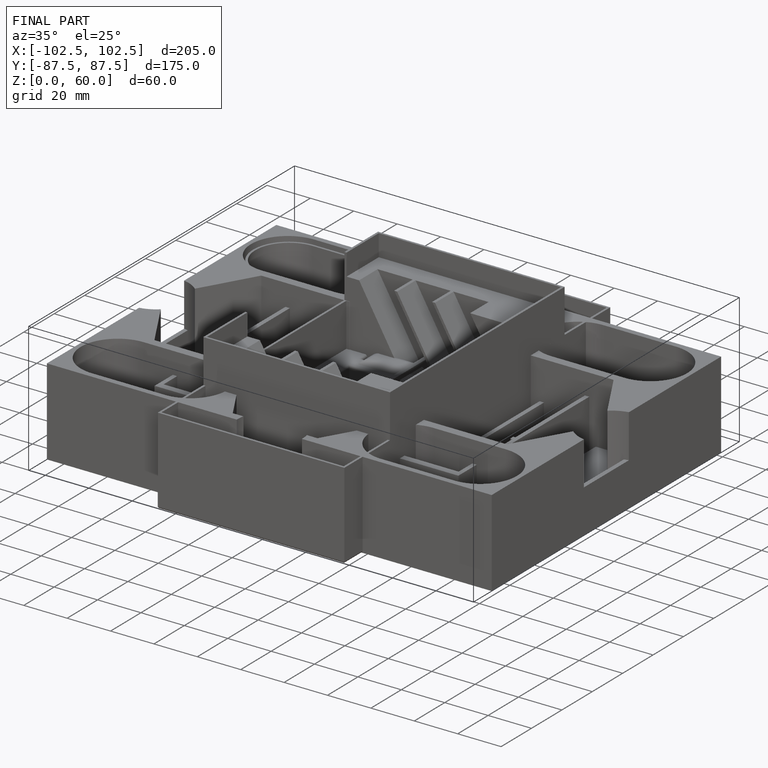
[diagram: finished part — iso view with bounding-box wireframe]
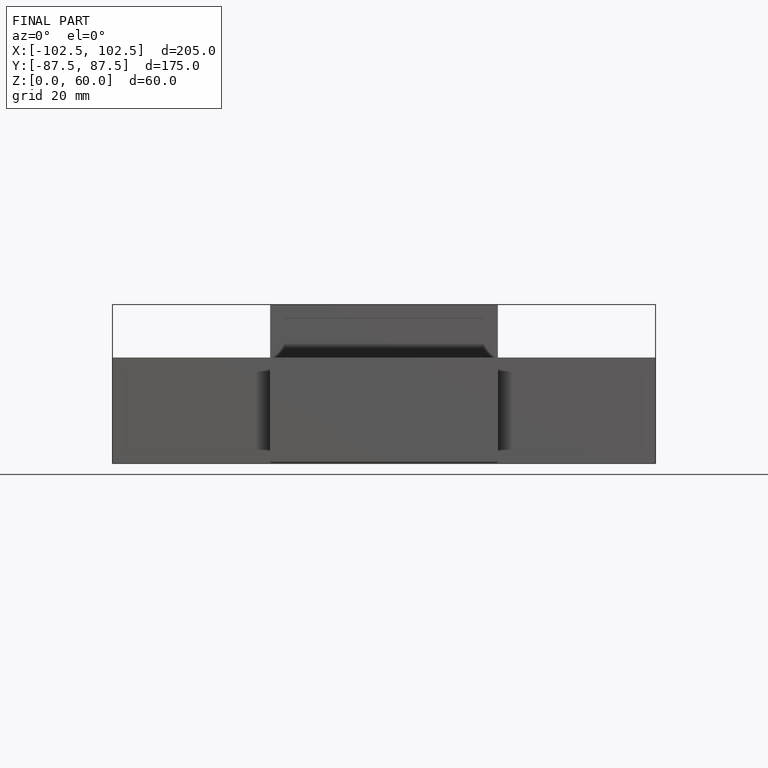
[diagram: finished part — front view with bounding-box wireframe]
